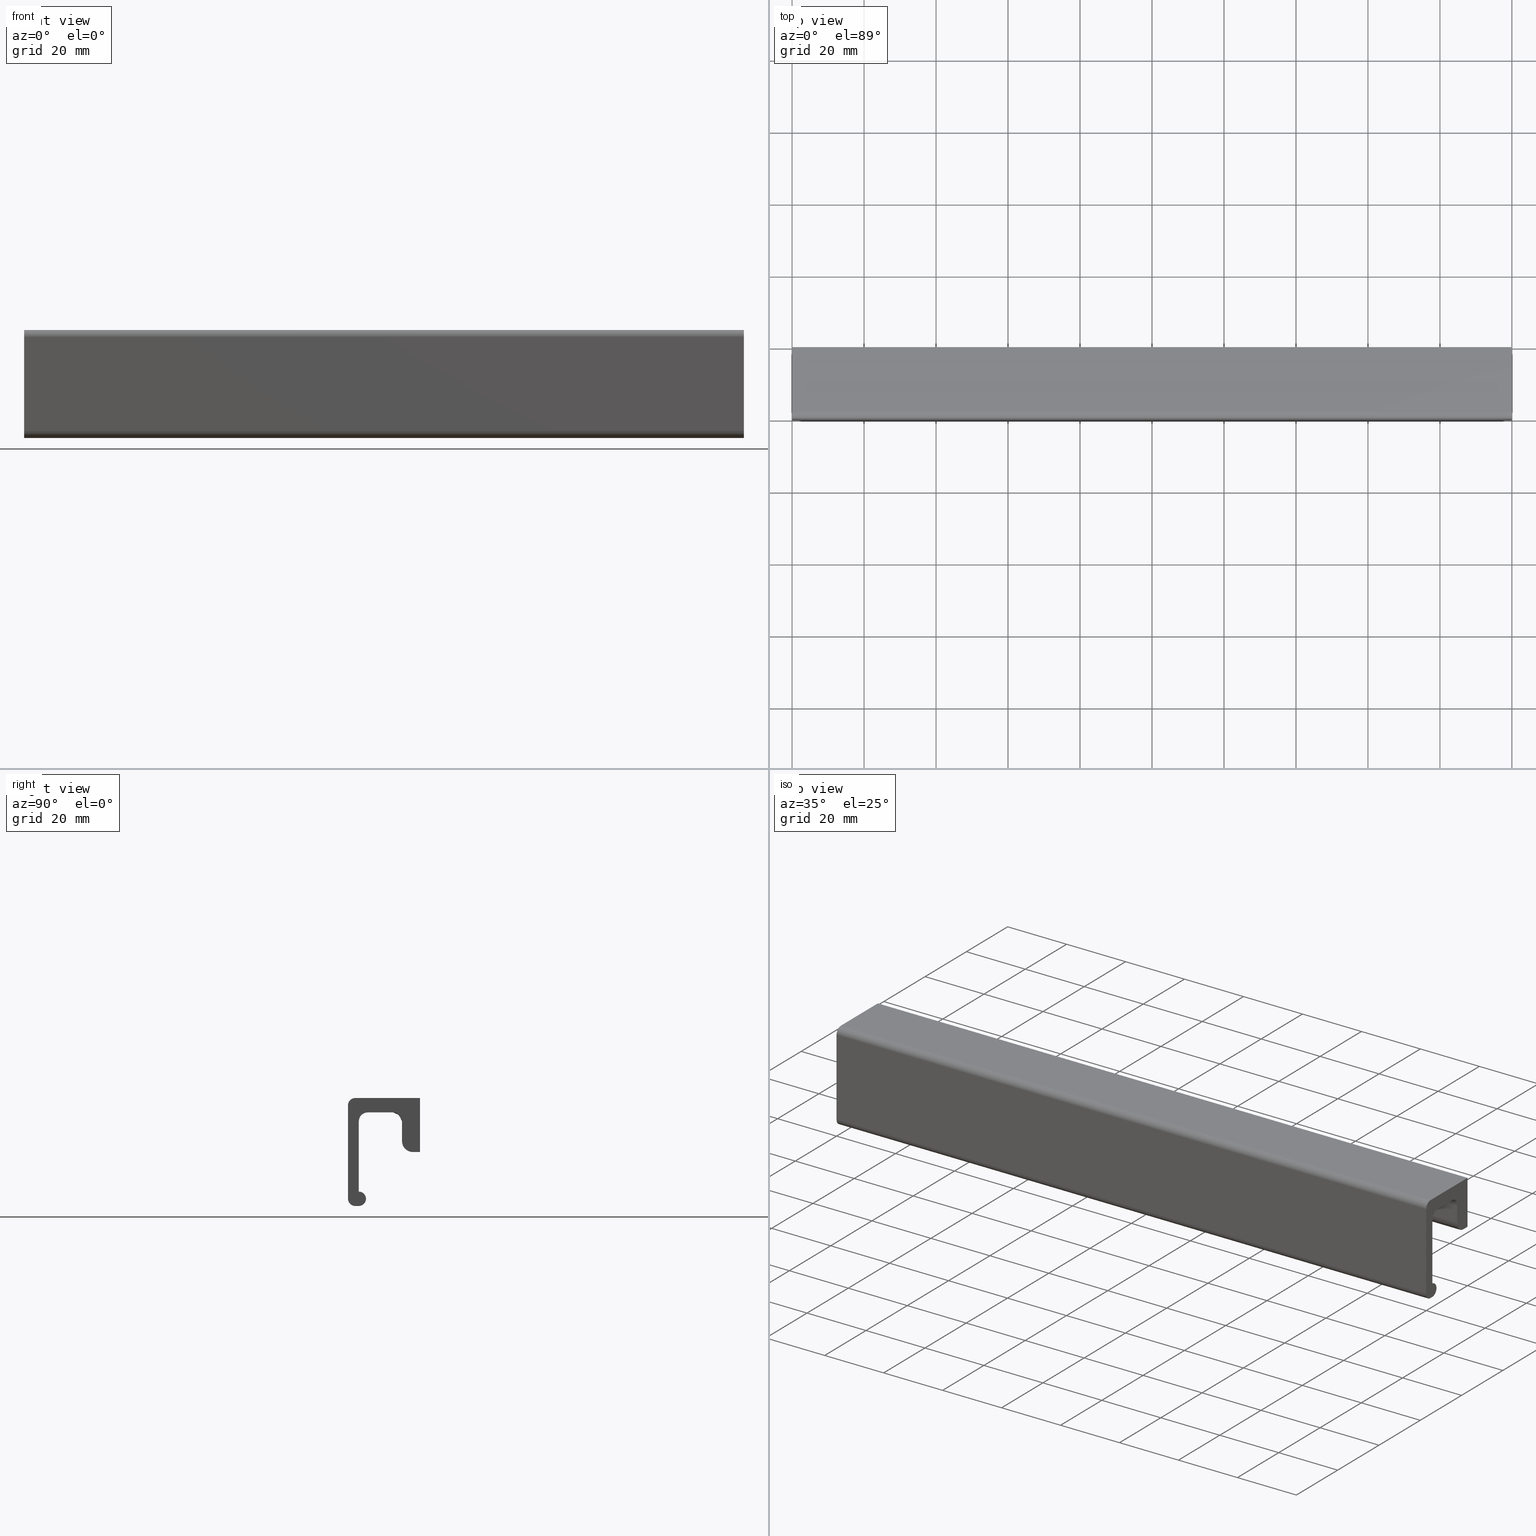
[diagram: canonical four-view strip — front | top / right | iso, engineering-drawing reading convention]
A machine part, canonical four-view strip (front | top / right | iso — engineering-drawing reading convention). The complete STEP part file that produces these views, byte-faithful:
ISO-10303-21;
HEADER;
/****************************************************************
 * Generated by software with PDE/Lib inside                    *
 * PDElib Version 4.4.1-0003, patched  Thursday August 19 11:58 *
 * International Technegroup Inc. (www.iti-oh.com)              *
 ****************************************************************/
FILE_DESCRIPTION((''),'2;1');
FILE_NAME('','2005-10-12T14:43:37',(''),(''),'','CADfix','');
FILE_SCHEMA(('AUTOMOTIVE_DESIGN'));
ENDSEC;
DATA;
#5=APPLICATION_CONTEXT('automotive design');
#6=APPLICATION_PROTOCOL_DEFINITION('Draft International Standard','automotive_design',1998,#5);
#7=PRODUCT_CONTEXT('None',#5,'mechanical');
#8=PRODUCT('pull','','None',(#7));
#9=PRODUCT_RELATED_PRODUCT_CATEGORY('part','description',(#8));
#10=PRODUCT_DEFINITION_FORMATION('None','None',#8);
#11=PRODUCT_DEFINITION_CONTEXT('part definition',#5,'design');
#12=PRODUCT_DEFINITION('None','None',#10,#11);
#18=(NAMED_UNIT(*)PLANE_ANGLE_UNIT()SI_UNIT($,.RADIAN.));
#19=DIMENSIONAL_EXPONENTS(0.0,0.0,0.0,0.0,0.0,0.0,0.0);
#20=PLANE_ANGLE_MEASURE_WITH_UNIT(PLANE_ANGLE_MEASURE(0.017453292500000),#18);
#24=(CONVERSION_BASED_UNIT('DEGREE',#20)NAMED_UNIT(#19)PLANE_ANGLE_UNIT());
#28=(NAMED_UNIT(*)SI_UNIT($,.STERADIAN.)SOLID_ANGLE_UNIT());
#32=(LENGTH_UNIT()NAMED_UNIT(*)SI_UNIT(.MILLI.,.METRE.));
#34=UNCERTAINTY_MEASURE_WITH_UNIT(LENGTH_MEASURE(0.001000000000000),#32,'DISTANCE_ACCURACY_VALUE','');
#36=(GEOMETRIC_REPRESENTATION_CONTEXT(3)GLOBAL_UNCERTAINTY_ASSIGNED_CONTEXT((#34))GLOBAL_UNIT_ASSIGNED_CONTEXT((#24,#28,#32))REPRESENTATION_CONTEXT('None','None'));
#37=AXIS2_PLACEMENT_3D('',#38,#39,#40);
#38=CARTESIAN_POINT('',(0.0,0.0,0.0));
#39=DIRECTION('',(0.0,0.0,1.0));
#40=DIRECTION('',(1.0,0.0,0.0));
#41=ADVANCED_BREP_SHAPE_REPRESENTATION('',(#37,#1245),#36);
#42=PRODUCT_DEFINITION_SHAPE('','',#12);
#43=SHAPE_DEFINITION_REPRESENTATION(#42,#41);
#44=CARTESIAN_POINT('',(177.480665534563800,-5.125000000000124,-9.310320005199573));
#45=CARTESIAN_POINT('',(177.204328145332990,-5.125000000000124,-11.519332076256115));
#46=CARTESIAN_POINT('',(174.978183661254090,-5.125000000000124,-11.499904807660430));
#47=CARTESIAN_POINT('',(172.478278853593680,-5.125000000000124,-11.478088468914493));
#48=CARTESIAN_POINT('',(172.500095192339590,-5.125000000000124,-8.978183661254064));
#49=CARTESIAN_POINT('',(177.480665534563800,0.128125000000003,-9.310320005199573));
#50=CARTESIAN_POINT('',(177.204328145332990,0.128125000000003,-11.519332076256115));
#51=CARTESIAN_POINT('',(174.978183661254090,0.128125000000003,-11.499904807660430));
#52=CARTESIAN_POINT('',(172.478278853593680,0.128125000000003,-11.478088468914493));
#53=CARTESIAN_POINT('',(172.500095192339590,0.128125000000003,-8.978183661254064));
#61=(BOUNDED_SURFACE()B_SPLINE_SURFACE(2,1,((#44,#49),(#45,#50),(#46,#51),(#47,#52),(#48,#53)),.UNSPECIFIED.,.F.,.F.,.U.)B_SPLINE_SURFACE_WITH_KNOTS((3,2,3),(2,2),(0.0,3.810764773832442,7.952900397563357),(0.0,5.253125000000129),.UNSPECIFIED.)GEOMETRIC_REPRESENTATION_ITEM()RATIONAL_B_SPLINE_SURFACE(((0.956886118190660,0.956886118190660),(0.730538238691624,0.730538238691624),(1.0,1.0),(0.707106781186548,0.707106781186548),(1.0,1.0)))REPRESENTATION_ITEM('')SURFACE());
#62=CARTESIAN_POINT('',(177.480665534313910,-5.000000000000121,-9.310320007197948));
#63=VERTEX_POINT('',#62);
#64=CARTESIAN_POINT('',(175.0,-5.000000000000120,-11.500000000000000));
#65=VERTEX_POINT('',#64);
#66=CARTESIAN_POINT('',(177.480665534313860,-5.000000000000121,-9.310320007197948));
#67=CARTESIAN_POINT('',(177.206746496792450,-5.000000000000121,-11.500000000000000));
#68=CARTESIAN_POINT('',(175.0,-5.000000000000120,-11.500000000000000));
#76=(BOUNDED_CURVE()B_SPLINE_CURVE(2,(#66,#67,#68),.UNSPECIFIED.,.F.,.U.)B_SPLINE_CURVE_WITH_KNOTS((3,3),(0.271473929242417,0.500000000000000),.UNSPECIFIED.)CURVE()GEOMETRIC_REPRESENTATION_ITEM()RATIONAL_B_SPLINE_CURVE((0.954005429747424,0.732265054212083,1.0))REPRESENTATION_ITEM(''));
#77=EDGE_CURVE('',#63,#65,#76,.T.);
#78=ORIENTED_EDGE('',*,*,#77,.F.);
#79=CARTESIAN_POINT('',(177.480665534347110,5.801229E-017,-9.310320006932358));
#80=VERTEX_POINT('',#79);
#81=CARTESIAN_POINT('',(177.480665534313910,-5.000000000000121,-9.310320007197948));
#82=CARTESIAN_POINT('',(177.480665534347110,5.801229E-017,-9.310320006932358));
#83=QUASI_UNIFORM_CURVE('',1,(#81,#82),.UNSPECIFIED.,.F.,.U.);
#84=EDGE_CURVE('',#63,#80,#83,.T.);
#85=ORIENTED_EDGE('',*,*,#84,.T.);
#86=CARTESIAN_POINT('',(175.0,0.0,-11.500000000000000));
#87=VERTEX_POINT('',#86);
#88=CARTESIAN_POINT('',(175.0,0.0,-11.500000000000000));
#89=CARTESIAN_POINT('',(177.206746497268740,0.0,-11.500000000000000));
#90=CARTESIAN_POINT('',(177.480665534347140,5.801229E-017,-9.310320006932358));
#98=(BOUNDED_CURVE()B_SPLINE_CURVE(2,(#88,#89,#90),.UNSPECIFIED.,.F.,.U.)B_SPLINE_CURVE_WITH_KNOTS((3,3),(0.500000000000000,0.728526070793695),.UNSPECIFIED.)CURVE()GEOMETRIC_REPRESENTATION_ITEM()RATIONAL_B_SPLINE_CURVE((1.0,0.732265054169775,0.954005429817503))REPRESENTATION_ITEM(''));
#99=EDGE_CURVE('',#87,#80,#98,.T.);
#100=ORIENTED_EDGE('',*,*,#99,.F.);
#101=CARTESIAN_POINT('',(172.500095192353200,8.326673E-017,-8.978183659695775));
#102=VERTEX_POINT('',#101);
#103=CARTESIAN_POINT('',(172.500095192353230,8.326673E-017,-8.978183659695775));
#104=CARTESIAN_POINT('',(172.500000000000060,0.0,-8.989091621389868));
#105=CARTESIAN_POINT('',(172.500000000000000,0.0,-9.0));
#106=CARTESIAN_POINT('',(172.500000000000060,0.0,-11.500000000000000));
#107=CARTESIAN_POINT('',(175.0,0.0,-11.500000000000000));
#115=(BOUNDED_CURVE()B_SPLINE_CURVE(2,(#103,#104,#105,#106,#107),.UNSPECIFIED.,.F.,.U.)B_SPLINE_CURVE_WITH_KNOTS((3,2,3),(0.248460105445419,0.250000000000000,0.500000000000000),.UNSPECIFIED.)CURVE()GEOMETRIC_REPRESENTATION_ITEM()RATIONAL_B_SPLINE_CURVE((0.996414027592205,0.998195901309102,1.0,0.707106781186548,1.0))REPRESENTATION_ITEM(''));
#116=EDGE_CURVE('',#102,#87,#115,.T.);
#117=ORIENTED_EDGE('',*,*,#116,.F.);
#118=CARTESIAN_POINT('',(172.500095192353910,-5.000000000000121,-8.978183659611599));
#119=VERTEX_POINT('',#118);
#120=CARTESIAN_POINT('',(172.500095192353910,-5.000000000000121,-8.978183659611599));
#121=CARTESIAN_POINT('',(172.500095192353200,8.326673E-017,-8.978183659695775));
#122=QUASI_UNIFORM_CURVE('',1,(#120,#121),.UNSPECIFIED.,.F.,.U.);
#123=EDGE_CURVE('',#119,#102,#122,.T.);
#124=ORIENTED_EDGE('',*,*,#123,.F.);
#125=CARTESIAN_POINT('',(175.0,-5.000000000000120,-11.500000000000000));
#126=CARTESIAN_POINT('',(172.500000000000060,-5.000000000000121,-11.500000000000000));
#127=CARTESIAN_POINT('',(172.500000000000000,-5.000000000000120,-9.0));
#128=CARTESIAN_POINT('',(172.499999999999970,-5.000000000000119,-8.989091621305693));
#129=CARTESIAN_POINT('',(172.500095192353910,-5.000000000000121,-8.978183659611599));
#137=(BOUNDED_CURVE()B_SPLINE_CURVE(2,(#125,#126,#127,#128,#129),.UNSPECIFIED.,.F.,.U.)B_SPLINE_CURVE_WITH_KNOTS((3,2,3),(0.500000000000000,0.750000000000000,0.751539894566442),.UNSPECIFIED.)CURVE()GEOMETRIC_REPRESENTATION_ITEM()RATIONAL_B_SPLINE_CURVE((1.0,0.707106781186548,1.0,0.998195901295206,0.996414027564756))REPRESENTATION_ITEM(''));
#138=EDGE_CURVE('',#65,#119,#137,.T.);
#139=ORIENTED_EDGE('',*,*,#138,.F.);
#140=EDGE_LOOP('',(#78,#85,#100,#117,#124,#139));
#141=FACE_OUTER_BOUND('',#140,.T.);
#142=ADVANCED_FACE('',(#141),#61,.F.);
#143=CARTESIAN_POINT('',(172.500095192339590,-5.125000000000124,-8.978183661254064));
#144=CARTESIAN_POINT('',(172.521911531085490,-5.125000000000124,-6.478278853593639));
#145=CARTESIAN_POINT('',(175.021816338745910,-5.125000000000124,-6.500095192339573));
#146=CARTESIAN_POINT('',(177.521721146406380,-5.125000000000124,-6.521911531085508));
#147=CARTESIAN_POINT('',(177.499904807660410,-5.125000000000124,-9.021816338745936));
#148=CARTESIAN_POINT('',(177.498641078150650,-5.125000000000124,-9.166625397395436));
#149=CARTESIAN_POINT('',(177.480665534563800,-5.125000000000124,-9.310320005199573));
#150=CARTESIAN_POINT('',(172.500095192339590,0.128125000000003,-8.978183661254064));
#151=CARTESIAN_POINT('',(172.521911531085490,0.128125000000003,-6.478278853593639));
#152=CARTESIAN_POINT('',(175.021816338745910,0.128125000000003,-6.500095192339573));
#153=CARTESIAN_POINT('',(177.521721146406380,0.128125000000003,-6.521911531085508));
#154=CARTESIAN_POINT('',(177.499904807660410,0.128125000000003,-9.021816338745936));
#155=CARTESIAN_POINT('',(177.498641078150650,0.128125000000003,-9.166625397395436));
#156=CARTESIAN_POINT('',(177.480665534563800,0.128125000000003,-9.310320005199573));
#164=(BOUNDED_SURFACE()B_SPLINE_SURFACE(2,1,((#143,#150),(#144,#151),(#145,#152),(#146,#153),(#147,#154),(#148,#155),(#149,#156)),.UNSPECIFIED.,.F.,.F.,.U.)B_SPLINE_SURFACE_WITH_KNOTS((3,2,2,3),(2,2),(0.0,4.142135623730963,8.284271247461925,8.615642097360404),(0.0,5.253125000000129),.UNSPECIFIED.)GEOMETRIC_REPRESENTATION_ITEM()RATIONAL_B_SPLINE_SURFACE(((1.0,1.0),(0.707106781186548,0.707106781186548),(1.0,1.0),(0.707106781186548,0.707106781186548),(1.0,1.0),(0.976568542494924,0.976568542494924),(0.956886118190660,0.956886118190660)))REPRESENTATION_ITEM('')SURFACE());
#165=CARTESIAN_POINT('',(175.0,-5.000000000000110,-6.500000000000000));
#166=VERTEX_POINT('',#165);
#167=CARTESIAN_POINT('',(175.0,-5.000000000000120,-6.499999999999999));
#168=CARTESIAN_POINT('',(177.500000000000030,-5.000000000000121,-6.499999999999999));
#169=CARTESIAN_POINT('',(177.500000000000000,-5.000000000000120,-9.0));
#170=CARTESIAN_POINT('',(177.499999999999940,-5.000000000000120,-9.155762320855503));
#171=CARTESIAN_POINT('',(177.480665534313860,-5.000000000000121,-9.310320007197948));
#179=(BOUNDED_CURVE()B_SPLINE_CURVE(2,(#167,#168,#169,#170,#171),.UNSPECIFIED.,.F.,.U.)B_SPLINE_CURVE_WITH_KNOTS((3,2,3),(0.0,0.250000000000000,0.271473929242417),.UNSPECIFIED.)CURVE()GEOMETRIC_REPRESENTATION_ITEM()RATIONAL_B_SPLINE_CURVE((1.0,0.707106781186548,1.0,0.974841726974465,0.954005429747424))REPRESENTATION_ITEM(''));
#180=EDGE_CURVE('',#166,#63,#179,.T.);
#181=ORIENTED_EDGE('',*,*,#180,.F.);
#182=CARTESIAN_POINT('',(172.500095192353910,-5.000000000000121,-8.978183659611599));
#183=CARTESIAN_POINT('',(172.521721976769190,-5.000000000000121,-6.499999999999998));
#184=CARTESIAN_POINT('',(175.0,-5.000000000000120,-6.499999999999999));
#192=(BOUNDED_CURVE()B_SPLINE_CURVE(2,(#182,#183,#184),.UNSPECIFIED.,.F.,.U.)B_SPLINE_CURVE_WITH_KNOTS((3,3),(0.751539894566443,1.0),.UNSPECIFIED.)CURVE()GEOMETRIC_REPRESENTATION_ITEM()RATIONAL_B_SPLINE_CURVE((0.996414027564753,0.708910879891342,1.0))REPRESENTATION_ITEM(''));
#193=EDGE_CURVE('',#119,#166,#192,.T.);
#194=ORIENTED_EDGE('',*,*,#193,.F.);
#195=ORIENTED_EDGE('',*,*,#123,.T.);
#196=CARTESIAN_POINT('',(175.0,0.0,-6.499999999999999));
#197=VERTEX_POINT('',#196);
#198=CARTESIAN_POINT('',(175.0,0.0,-6.499999999999999));
#199=CARTESIAN_POINT('',(172.521721976602270,0.0,-6.499999999999998));
#200=CARTESIAN_POINT('',(172.500095192353230,8.326673E-017,-8.978183659695775));
#208=(BOUNDED_CURVE()B_SPLINE_CURVE(2,(#198,#199,#200),.UNSPECIFIED.,.F.,.U.)B_SPLINE_CURVE_WITH_KNOTS((3,3),(0.0,0.248460105445419),.UNSPECIFIED.)CURVE()GEOMETRIC_REPRESENTATION_ITEM()RATIONAL_B_SPLINE_CURVE((1.0,0.708910879877445,0.996414027592205))REPRESENTATION_ITEM(''));
#209=EDGE_CURVE('',#197,#102,#208,.T.);
#210=ORIENTED_EDGE('',*,*,#209,.F.);
#211=CARTESIAN_POINT('',(177.480665534347110,5.801229E-017,-9.310320006932358));
#212=CARTESIAN_POINT('',(177.499999999999970,0.0,-9.155762320586804));
#213=CARTESIAN_POINT('',(177.500000000000000,0.0,-9.0));
#214=CARTESIAN_POINT('',(177.500000000000030,0.0,-6.499999999999999));
#215=CARTESIAN_POINT('',(175.0,0.0,-6.499999999999999));
#223=(BOUNDED_CURVE()B_SPLINE_CURVE(2,(#211,#212,#213,#214,#215),.UNSPECIFIED.,.F.,.U.)B_SPLINE_CURVE_WITH_KNOTS((3,2,3),(0.728526070793695,0.750000000000000,1.0),.UNSPECIFIED.)CURVE()GEOMETRIC_REPRESENTATION_ITEM()RATIONAL_B_SPLINE_CURVE((0.954005429817503,0.974841727016773,1.0,0.707106781186548,1.0))REPRESENTATION_ITEM(''));
#224=EDGE_CURVE('',#80,#197,#223,.T.);
#225=ORIENTED_EDGE('',*,*,#224,.F.);
#226=ORIENTED_EDGE('',*,*,#84,.F.);
#227=EDGE_LOOP('',(#181,#194,#195,#210,#225,#226));
#228=FACE_OUTER_BOUND('',#227,.T.);
#229=ADVANCED_FACE('',(#228),#164,.F.);
#230=CARTESIAN_POINT('',(102.480665534563850,-5.125000000000124,-9.310320005199573));
#231=CARTESIAN_POINT('',(102.204328145333050,-5.125000000000124,-11.519332076256115));
#232=CARTESIAN_POINT('',(99.978183661254064,-5.125000000000124,-11.499904807660430));
#233=CARTESIAN_POINT('',(97.478278853593636,-5.125000000000124,-11.478088468914493));
#234=CARTESIAN_POINT('',(97.500095192339572,-5.125000000000124,-8.978183661254064));
#235=CARTESIAN_POINT('',(102.480665534563850,0.128125000000003,-9.310320005199573));
#236=CARTESIAN_POINT('',(102.204328145333050,0.128125000000003,-11.519332076256115));
#237=CARTESIAN_POINT('',(99.978183661254064,0.128125000000003,-11.499904807660430));
#238=CARTESIAN_POINT('',(97.478278853593636,0.128125000000003,-11.478088468914493));
#239=CARTESIAN_POINT('',(97.500095192339572,0.128125000000003,-8.978183661254064));
#247=(BOUNDED_SURFACE()B_SPLINE_SURFACE(2,1,((#230,#235),(#231,#236),(#232,#237),(#233,#238),(#234,#239)),.UNSPECIFIED.,.F.,.F.,.U.)B_SPLINE_SURFACE_WITH_KNOTS((3,2,3),(2,2),(0.0,3.810764773832463,7.952900397563402),(0.0,5.253125000000129),.UNSPECIFIED.)GEOMETRIC_REPRESENTATION_ITEM()RATIONAL_B_SPLINE_SURFACE(((0.956886118190660,0.956886118190660),(0.730538238691624,0.730538238691624),(1.0,1.0),(0.707106781186548,0.707106781186548),(1.0,1.0)))REPRESENTATION_ITEM('')SURFACE());
#248=CARTESIAN_POINT('',(102.480665534313900,-5.000000000000121,-9.310320007197952));
#249=VERTEX_POINT('',#248);
#250=CARTESIAN_POINT('',(100.0,-5.000000000000120,-11.500000000000000));
#251=VERTEX_POINT('',#250);
#252=CARTESIAN_POINT('',(102.480665534313870,-5.000000000000121,-9.310320007197952));
#253=CARTESIAN_POINT('',(102.206746496792450,-5.000000000000121,-11.500000000000000));
#254=CARTESIAN_POINT('',(100.0,-5.000000000000120,-11.500000000000000));
#262=(BOUNDED_CURVE()B_SPLINE_CURVE(2,(#252,#253,#254),.UNSPECIFIED.,.F.,.U.)B_SPLINE_CURVE_WITH_KNOTS((3,3),(0.271473929242417,0.500000000000000),.UNSPECIFIED.)CURVE()GEOMETRIC_REPRESENTATION_ITEM()RATIONAL_B_SPLINE_CURVE((0.954005429747423,0.732265054212083,1.0))REPRESENTATION_ITEM(''));
#263=EDGE_CURVE('',#249,#251,#262,.T.);
#264=ORIENTED_EDGE('',*,*,#263,.F.);
#265=CARTESIAN_POINT('',(102.480665534347100,5.801229E-017,-9.310320006932358));
#266=VERTEX_POINT('',#265);
#267=CARTESIAN_POINT('',(102.480665534313900,-5.000000000000121,-9.310320007197952));
#268=CARTESIAN_POINT('',(102.480665534347100,5.801229E-017,-9.310320006932358));
#269=QUASI_UNIFORM_CURVE('',1,(#267,#268),.UNSPECIFIED.,.F.,.U.);
#270=EDGE_CURVE('',#249,#266,#269,.T.);
#271=ORIENTED_EDGE('',*,*,#270,.T.);
#272=CARTESIAN_POINT('',(100.0,0.0,-11.500000000000000));
#273=VERTEX_POINT('',#272);
#274=CARTESIAN_POINT('',(100.0,0.0,-11.500000000000000));
#275=CARTESIAN_POINT('',(102.206746497268670,0.0,-11.500000000000000));
#276=CARTESIAN_POINT('',(102.480665534347080,5.801229E-017,-9.310320006932358));
#284=(BOUNDED_CURVE()B_SPLINE_CURVE(2,(#274,#275,#276),.UNSPECIFIED.,.F.,.U.)B_SPLINE_CURVE_WITH_KNOTS((3,3),(0.500000000000000,0.728526070793695),.UNSPECIFIED.)CURVE()GEOMETRIC_REPRESENTATION_ITEM()RATIONAL_B_SPLINE_CURVE((1.0,0.732265054169775,0.954005429817503))REPRESENTATION_ITEM(''));
#285=EDGE_CURVE('',#273,#266,#284,.T.);
#286=ORIENTED_EDGE('',*,*,#285,.F.);
#287=CARTESIAN_POINT('',(97.500095192353172,8.326673E-017,-8.978183659695777));
#288=VERTEX_POINT('',#287);
#289=CARTESIAN_POINT('',(97.500095192353172,8.326673E-017,-8.978183659695777));
#290=CARTESIAN_POINT('',(97.500000000000000,0.0,-8.989091621389868));
#291=CARTESIAN_POINT('',(97.500000000000000,0.0,-9.0));
#292=CARTESIAN_POINT('',(97.500000000000000,0.0,-11.500000000000000));
#293=CARTESIAN_POINT('',(100.0,0.0,-11.500000000000000));
#301=(BOUNDED_CURVE()B_SPLINE_CURVE(2,(#289,#290,#291,#292,#293),.UNSPECIFIED.,.F.,.U.)B_SPLINE_CURVE_WITH_KNOTS((3,2,3),(0.248460105445419,0.250000000000000,0.500000000000000),.UNSPECIFIED.)CURVE()GEOMETRIC_REPRESENTATION_ITEM()RATIONAL_B_SPLINE_CURVE((0.996414027592205,0.998195901309102,1.0,0.707106781186548,1.0))REPRESENTATION_ITEM(''));
#302=EDGE_CURVE('',#288,#273,#301,.T.);
#303=ORIENTED_EDGE('',*,*,#302,.F.);
#304=CARTESIAN_POINT('',(97.500095192353911,-5.000000000000121,-8.978183659611601));
#305=VERTEX_POINT('',#304);
#306=CARTESIAN_POINT('',(97.500095192353911,-5.000000000000121,-8.978183659611601));
#307=CARTESIAN_POINT('',(97.500095192353172,8.326673E-017,-8.978183659695777));
#308=QUASI_UNIFORM_CURVE('',1,(#306,#307),.UNSPECIFIED.,.F.,.U.);
#309=EDGE_CURVE('',#305,#288,#308,.T.);
#310=ORIENTED_EDGE('',*,*,#309,.F.);
#311=CARTESIAN_POINT('',(100.0,-5.000000000000120,-11.500000000000000));
#312=CARTESIAN_POINT('',(97.500000000000000,-5.000000000000121,-11.500000000000000));
#313=CARTESIAN_POINT('',(97.500000000000000,-5.000000000000120,-9.0));
#314=CARTESIAN_POINT('',(97.499999999999986,-5.000000000000119,-8.989091621305693));
#315=CARTESIAN_POINT('',(97.500095192353911,-5.000000000000121,-8.978183659611601));
#323=(BOUNDED_CURVE()B_SPLINE_CURVE(2,(#311,#312,#313,#314,#315),.UNSPECIFIED.,.F.,.U.)B_SPLINE_CURVE_WITH_KNOTS((3,2,3),(0.500000000000000,0.750000000000000,0.751539894566442),.UNSPECIFIED.)CURVE()GEOMETRIC_REPRESENTATION_ITEM()RATIONAL_B_SPLINE_CURVE((1.0,0.707106781186548,1.0,0.998195901295206,0.996414027564756))REPRESENTATION_ITEM(''));
#324=EDGE_CURVE('',#251,#305,#323,.T.);
#325=ORIENTED_EDGE('',*,*,#324,.F.);
#326=EDGE_LOOP('',(#264,#271,#286,#303,#310,#325));
#327=FACE_OUTER_BOUND('',#326,.T.);
#328=ADVANCED_FACE('',(#327),#247,.F.);
#329=CARTESIAN_POINT('',(97.500095192339572,-5.125000000000124,-8.978183661254064));
#330=CARTESIAN_POINT('',(97.521911531085507,-5.125000000000124,-6.478278853593639));
#331=CARTESIAN_POINT('',(100.021816338745890,-5.125000000000124,-6.500095192339573));
#332=CARTESIAN_POINT('',(102.521721146406380,-5.125000000000124,-6.521911531085508));
#333=CARTESIAN_POINT('',(102.499904807660400,-5.125000000000124,-9.021816338745936));
#334=CARTESIAN_POINT('',(102.498641078150740,-5.125000000000124,-9.166625397395436));
#335=CARTESIAN_POINT('',(102.480665534563850,-5.125000000000124,-9.310320005199573));
#336=CARTESIAN_POINT('',(97.500095192339572,0.128125000000003,-8.978183661254064));
#337=CARTESIAN_POINT('',(97.521911531085507,0.128125000000003,-6.478278853593639));
#338=CARTESIAN_POINT('',(100.021816338745890,0.128125000000003,-6.500095192339573));
#339=CARTESIAN_POINT('',(102.521721146406380,0.128125000000003,-6.521911531085508));
#340=CARTESIAN_POINT('',(102.499904807660400,0.128125000000003,-9.021816338745936));
#341=CARTESIAN_POINT('',(102.498641078150740,0.128125000000003,-9.166625397395436));
#342=CARTESIAN_POINT('',(102.480665534563850,0.128125000000003,-9.310320005199573));
#350=(BOUNDED_SURFACE()B_SPLINE_SURFACE(2,1,((#329,#336),(#330,#337),(#331,#338),(#332,#339),(#333,#340),(#334,#341),(#335,#342)),.UNSPECIFIED.,.F.,.F.,.U.)B_SPLINE_SURFACE_WITH_KNOTS((3,2,2,3),(2,2),(0.0,4.142135623730940,8.284271247461879,8.615642097360354),(0.0,5.253125000000129),.UNSPECIFIED.)GEOMETRIC_REPRESENTATION_ITEM()RATIONAL_B_SPLINE_SURFACE(((1.0,1.0),(0.707106781186548,0.707106781186548),(1.0,1.0),(0.707106781186548,0.707106781186548),(1.0,1.0),(0.976568542494924,0.976568542494924),(0.956886118190660,0.956886118190660)))REPRESENTATION_ITEM('')SURFACE());
#351=CARTESIAN_POINT('',(100.0,-5.000000000000110,-6.500000000000000));
#352=VERTEX_POINT('',#351);
#353=CARTESIAN_POINT('',(100.0,-5.000000000000120,-6.499999999999999));
#354=CARTESIAN_POINT('',(102.500000000000010,-5.000000000000121,-6.499999999999999));
#355=CARTESIAN_POINT('',(102.500000000000000,-5.000000000000120,-9.0));
#356=CARTESIAN_POINT('',(102.500000000000030,-5.000000000000120,-9.155762320855507));
#357=CARTESIAN_POINT('',(102.480665534313870,-5.000000000000121,-9.310320007197952));
#365=(BOUNDED_CURVE()B_SPLINE_CURVE(2,(#353,#354,#355,#356,#357),.UNSPECIFIED.,.F.,.U.)B_SPLINE_CURVE_WITH_KNOTS((3,2,3),(0.0,0.250000000000000,0.271473929242417),.UNSPECIFIED.)CURVE()GEOMETRIC_REPRESENTATION_ITEM()RATIONAL_B_SPLINE_CURVE((1.0,0.707106781186548,1.0,0.974841726974464,0.954005429747423))REPRESENTATION_ITEM(''));
#366=EDGE_CURVE('',#352,#249,#365,.T.);
#367=ORIENTED_EDGE('',*,*,#366,.F.);
#368=CARTESIAN_POINT('',(97.500095192353911,-5.000000000000121,-8.978183659611601));
#369=CARTESIAN_POINT('',(97.521721976769172,-5.000000000000120,-6.499999999999999));
#370=CARTESIAN_POINT('',(100.0,-5.000000000000120,-6.499999999999999));
#378=(BOUNDED_CURVE()B_SPLINE_CURVE(2,(#368,#369,#370),.UNSPECIFIED.,.F.,.U.)B_SPLINE_CURVE_WITH_KNOTS((3,3),(0.751539894566443,1.0),.UNSPECIFIED.)CURVE()GEOMETRIC_REPRESENTATION_ITEM()RATIONAL_B_SPLINE_CURVE((0.996414027564753,0.708910879891342,1.0))REPRESENTATION_ITEM(''));
#379=EDGE_CURVE('',#305,#352,#378,.T.);
#380=ORIENTED_EDGE('',*,*,#379,.F.);
#381=ORIENTED_EDGE('',*,*,#309,.T.);
#382=CARTESIAN_POINT('',(100.0,0.0,-6.499999999999999));
#383=VERTEX_POINT('',#382);
#384=CARTESIAN_POINT('',(100.0,0.0,-6.499999999999999));
#385=CARTESIAN_POINT('',(97.521721976602279,0.0,-6.500000000000000));
#386=CARTESIAN_POINT('',(97.500095192353172,8.326673E-017,-8.978183659695777));
#394=(BOUNDED_CURVE()B_SPLINE_CURVE(2,(#384,#385,#386),.UNSPECIFIED.,.F.,.U.)B_SPLINE_CURVE_WITH_KNOTS((3,3),(0.0,0.248460105445419),.UNSPECIFIED.)CURVE()GEOMETRIC_REPRESENTATION_ITEM()RATIONAL_B_SPLINE_CURVE((1.0,0.708910879877445,0.996414027592205))REPRESENTATION_ITEM(''));
#395=EDGE_CURVE('',#383,#288,#394,.T.);
#396=ORIENTED_EDGE('',*,*,#395,.F.);
#397=CARTESIAN_POINT('',(102.480665534347080,5.801229E-017,-9.310320006932358));
#398=CARTESIAN_POINT('',(102.500000000000010,0.0,-9.155762320586804));
#399=CARTESIAN_POINT('',(102.500000000000000,0.0,-9.0));
#400=CARTESIAN_POINT('',(102.500000000000010,0.0,-6.499999999999999));
#401=CARTESIAN_POINT('',(100.0,0.0,-6.499999999999999));
#409=(BOUNDED_CURVE()B_SPLINE_CURVE(2,(#397,#398,#399,#400,#401),.UNSPECIFIED.,.F.,.U.)B_SPLINE_CURVE_WITH_KNOTS((3,2,3),(0.728526070793695,0.750000000000000,1.0),.UNSPECIFIED.)CURVE()GEOMETRIC_REPRESENTATION_ITEM()RATIONAL_B_SPLINE_CURVE((0.954005429817503,0.974841727016773,1.0,0.707106781186548,1.0))REPRESENTATION_ITEM(''));
#410=EDGE_CURVE('',#266,#383,#409,.T.);
#411=ORIENTED_EDGE('',*,*,#410,.F.);
#412=ORIENTED_EDGE('',*,*,#270,.F.);
#413=EDGE_LOOP('',(#367,#380,#381,#396,#411,#412));
#414=FACE_OUTER_BOUND('',#413,.T.);
#415=ADVANCED_FACE('',(#414),#350,.F.);
#416=CARTESIAN_POINT('',(27.480665534563840,-5.125000000000124,-9.310320005199573));
#417=CARTESIAN_POINT('',(27.204328145333058,-5.125000000000124,-11.519332076256115));
#418=CARTESIAN_POINT('',(24.978183661254061,-5.125000000000124,-11.499904807660430));
#419=CARTESIAN_POINT('',(22.478278853593643,-5.125000000000124,-11.478088468914493));
#420=CARTESIAN_POINT('',(22.500095192339568,-5.125000000000124,-8.978183661254064));
#421=CARTESIAN_POINT('',(27.480665534563840,0.128125000000003,-9.310320005199573));
#422=CARTESIAN_POINT('',(27.204328145333058,0.128125000000003,-11.519332076256115));
#423=CARTESIAN_POINT('',(24.978183661254061,0.128125000000003,-11.499904807660430));
#424=CARTESIAN_POINT('',(22.478278853593643,0.128125000000003,-11.478088468914493));
#425=CARTESIAN_POINT('',(22.500095192339568,0.128125000000003,-8.978183661254064));
#433=(BOUNDED_SURFACE()B_SPLINE_SURFACE(2,1,((#416,#421),(#417,#422),(#418,#423),(#419,#424),(#420,#425)),.UNSPECIFIED.,.F.,.F.,.U.)B_SPLINE_SURFACE_WITH_KNOTS((3,2,3),(2,2),(0.0,3.810764773832474,7.952900397563425),(0.0,5.253125000000129),.UNSPECIFIED.)GEOMETRIC_REPRESENTATION_ITEM()RATIONAL_B_SPLINE_SURFACE(((0.956886118190660,0.956886118190660),(0.730538238691624,0.730538238691624),(1.0,1.0),(0.707106781186548,0.707106781186548),(1.0,1.0)))REPRESENTATION_ITEM('')SURFACE());
#434=CARTESIAN_POINT('',(27.480665534313861,-5.000000000000121,-9.310320007197950));
#435=VERTEX_POINT('',#434);
#436=CARTESIAN_POINT('',(25.0,-5.000000000000120,-11.500000000000000));
#437=VERTEX_POINT('',#436);
#438=CARTESIAN_POINT('',(27.480665534313861,-5.000000000000121,-9.310320007197950));
#439=CARTESIAN_POINT('',(27.206746496792444,-5.000000000000120,-11.500000000000000));
#440=CARTESIAN_POINT('',(25.0,-5.000000000000120,-11.500000000000000));
#448=(BOUNDED_CURVE()B_SPLINE_CURVE(2,(#438,#439,#440),.UNSPECIFIED.,.F.,.U.)B_SPLINE_CURVE_WITH_KNOTS((3,3),(0.271473929242417,0.500000000000000),.UNSPECIFIED.)CURVE()GEOMETRIC_REPRESENTATION_ITEM()RATIONAL_B_SPLINE_CURVE((0.954005429747424,0.732265054212083,1.0))REPRESENTATION_ITEM(''));
#449=EDGE_CURVE('',#435,#437,#448,.T.);
#450=ORIENTED_EDGE('',*,*,#449,.F.);
#451=CARTESIAN_POINT('',(27.480665534347079,5.801229E-017,-9.310320006932356));
#452=VERTEX_POINT('',#451);
#453=CARTESIAN_POINT('',(27.480665534313861,-5.000000000000121,-9.310320007197950));
#454=CARTESIAN_POINT('',(27.480665534347079,5.801229E-017,-9.310320006932356));
#455=QUASI_UNIFORM_CURVE('',1,(#453,#454),.UNSPECIFIED.,.F.,.U.);
#456=EDGE_CURVE('',#435,#452,#455,.T.);
#457=ORIENTED_EDGE('',*,*,#456,.T.);
#458=CARTESIAN_POINT('',(25.0,0.0,-11.500000000000000));
#459=VERTEX_POINT('',#458);
#460=CARTESIAN_POINT('',(25.0,0.0,-11.500000000000000));
#461=CARTESIAN_POINT('',(27.206746497268643,0.0,-11.500000000000000));
#462=CARTESIAN_POINT('',(27.480665534347086,5.801229E-017,-9.310320006932356));
#470=(BOUNDED_CURVE()B_SPLINE_CURVE(2,(#460,#461,#462),.UNSPECIFIED.,.F.,.U.)B_SPLINE_CURVE_WITH_KNOTS((3,3),(0.500000000000000,0.728526070793695),.UNSPECIFIED.)CURVE()GEOMETRIC_REPRESENTATION_ITEM()RATIONAL_B_SPLINE_CURVE((1.0,0.732265054169775,0.954005429817503))REPRESENTATION_ITEM(''));
#471=EDGE_CURVE('',#459,#452,#470,.T.);
#472=ORIENTED_EDGE('',*,*,#471,.F.);
#473=CARTESIAN_POINT('',(22.500095192353172,8.326673E-017,-8.978183659695775));
#474=VERTEX_POINT('',#473);
#475=CARTESIAN_POINT('',(22.500095192353168,8.326673E-017,-8.978183659695775));
#476=CARTESIAN_POINT('',(22.500000000000000,0.0,-8.989091621389868));
#477=CARTESIAN_POINT('',(22.500000000000000,0.0,-9.0));
#478=CARTESIAN_POINT('',(22.500000000000000,0.0,-11.500000000000000));
#479=CARTESIAN_POINT('',(25.0,0.0,-11.500000000000000));
#487=(BOUNDED_CURVE()B_SPLINE_CURVE(2,(#475,#476,#477,#478,#479),.UNSPECIFIED.,.F.,.U.)B_SPLINE_CURVE_WITH_KNOTS((3,2,3),(0.248460105445419,0.250000000000000,0.500000000000000),.UNSPECIFIED.)CURVE()GEOMETRIC_REPRESENTATION_ITEM()RATIONAL_B_SPLINE_CURVE((0.996414027592205,0.998195901309102,1.0,0.707106781186548,1.0))REPRESENTATION_ITEM(''));
#488=EDGE_CURVE('',#474,#459,#487,.T.);
#489=ORIENTED_EDGE('',*,*,#488,.F.);
#490=CARTESIAN_POINT('',(22.500095192353911,-5.000000000000121,-8.978183659611601));
#491=VERTEX_POINT('',#490);
#492=CARTESIAN_POINT('',(22.500095192353911,-5.000000000000121,-8.978183659611601));
#493=CARTESIAN_POINT('',(22.500095192353172,8.326673E-017,-8.978183659695775));
#494=QUASI_UNIFORM_CURVE('',1,(#492,#493),.UNSPECIFIED.,.F.,.U.);
#495=EDGE_CURVE('',#491,#474,#494,.T.);
#496=ORIENTED_EDGE('',*,*,#495,.F.);
#497=CARTESIAN_POINT('',(25.0,-5.000000000000120,-11.500000000000000));
#498=CARTESIAN_POINT('',(22.500000000000000,-5.000000000000121,-11.500000000000000));
#499=CARTESIAN_POINT('',(22.500000000000000,-5.000000000000120,-9.0));
#500=CARTESIAN_POINT('',(22.500000000000007,-5.000000000000119,-8.989091621305693));
#501=CARTESIAN_POINT('',(22.500095192353911,-5.000000000000121,-8.978183659611601));
#509=(BOUNDED_CURVE()B_SPLINE_CURVE(2,(#497,#498,#499,#500,#501),.UNSPECIFIED.,.F.,.U.)B_SPLINE_CURVE_WITH_KNOTS((3,2,3),(0.500000000000000,0.750000000000000,0.751539894566442),.UNSPECIFIED.)CURVE()GEOMETRIC_REPRESENTATION_ITEM()RATIONAL_B_SPLINE_CURVE((1.0,0.707106781186548,1.0,0.998195901295206,0.996414027564756))REPRESENTATION_ITEM(''));
#510=EDGE_CURVE('',#437,#491,#509,.T.);
#511=ORIENTED_EDGE('',*,*,#510,.F.);
#512=EDGE_LOOP('',(#450,#457,#472,#489,#496,#511));
#513=FACE_OUTER_BOUND('',#512,.T.);
#514=ADVANCED_FACE('',(#513),#433,.F.);
#515=CARTESIAN_POINT('',(22.500095192339568,-5.125000000000124,-8.978183661254064));
#516=CARTESIAN_POINT('',(22.521911531085504,-5.125000000000124,-6.478278853593639));
#517=CARTESIAN_POINT('',(25.021816338745939,-5.125000000000124,-6.500095192339573));
#518=CARTESIAN_POINT('',(27.521721146406374,-5.125000000000124,-6.521911531085508));
#519=CARTESIAN_POINT('',(27.499904807660432,-5.125000000000124,-9.021816338745936));
#520=CARTESIAN_POINT('',(27.498641078150690,-5.125000000000124,-9.166625397395436));
#521=CARTESIAN_POINT('',(27.480665534563840,-5.125000000000124,-9.310320005199573));
#522=CARTESIAN_POINT('',(22.500095192339568,0.128125000000003,-8.978183661254064));
#523=CARTESIAN_POINT('',(22.521911531085504,0.128125000000003,-6.478278853593639));
#524=CARTESIAN_POINT('',(25.021816338745939,0.128125000000003,-6.500095192339573));
#525=CARTESIAN_POINT('',(27.521721146406374,0.128125000000003,-6.521911531085508));
#526=CARTESIAN_POINT('',(27.499904807660432,0.128125000000003,-9.021816338745936));
#527=CARTESIAN_POINT('',(27.498641078150690,0.128125000000003,-9.166625397395436));
#528=CARTESIAN_POINT('',(27.480665534563840,0.128125000000003,-9.310320005199573));
#536=(BOUNDED_SURFACE()B_SPLINE_SURFACE(2,1,((#515,#522),(#516,#523),(#517,#524),(#518,#525),(#519,#526),(#520,#527),(#521,#528)),.UNSPECIFIED.,.F.,.F.,.U.)B_SPLINE_SURFACE_WITH_KNOTS((3,2,2,3),(2,2),(0.0,4.142135623730951,8.284271247461902,8.615642097360379),(0.0,5.253125000000129),.UNSPECIFIED.)GEOMETRIC_REPRESENTATION_ITEM()RATIONAL_B_SPLINE_SURFACE(((1.0,1.0),(0.707106781186548,0.707106781186548),(1.0,1.0),(0.707106781186548,0.707106781186548),(1.0,1.0),(0.976568542494924,0.976568542494924),(0.956886118190660,0.956886118190660)))REPRESENTATION_ITEM('')SURFACE());
#537=CARTESIAN_POINT('',(25.0,-5.000000000000110,-6.500000000000000));
#538=VERTEX_POINT('',#537);
#539=CARTESIAN_POINT('',(25.0,-5.000000000000120,-6.499999999999999));
#540=CARTESIAN_POINT('',(27.500000000000004,-5.000000000000121,-6.499999999999999));
#541=CARTESIAN_POINT('',(27.500000000000000,-5.000000000000120,-9.0));
#542=CARTESIAN_POINT('',(27.499999999999993,-5.000000000000120,-9.155762320855503));
#543=CARTESIAN_POINT('',(27.480665534313861,-5.000000000000121,-9.310320007197950));
#551=(BOUNDED_CURVE()B_SPLINE_CURVE(2,(#539,#540,#541,#542,#543),.UNSPECIFIED.,.F.,.U.)B_SPLINE_CURVE_WITH_KNOTS((3,2,3),(0.0,0.250000000000000,0.271473929242417),.UNSPECIFIED.)CURVE()GEOMETRIC_REPRESENTATION_ITEM()RATIONAL_B_SPLINE_CURVE((1.0,0.707106781186548,1.0,0.974841726974465,0.954005429747424))REPRESENTATION_ITEM(''));
#552=EDGE_CURVE('',#538,#435,#551,.T.);
#553=ORIENTED_EDGE('',*,*,#552,.F.);
#554=CARTESIAN_POINT('',(22.500095192353914,-5.000000000000121,-8.978183659611601));
#555=CARTESIAN_POINT('',(22.521721976769189,-5.000000000000120,-6.499999999999999));
#556=CARTESIAN_POINT('',(25.0,-5.000000000000120,-6.499999999999999));
#564=(BOUNDED_CURVE()B_SPLINE_CURVE(2,(#554,#555,#556),.UNSPECIFIED.,.F.,.U.)B_SPLINE_CURVE_WITH_KNOTS((3,3),(0.751539894566443,1.0),.UNSPECIFIED.)CURVE()GEOMETRIC_REPRESENTATION_ITEM()RATIONAL_B_SPLINE_CURVE((0.996414027564753,0.708910879891342,1.0))REPRESENTATION_ITEM(''));
#565=EDGE_CURVE('',#491,#538,#564,.T.);
#566=ORIENTED_EDGE('',*,*,#565,.F.);
#567=ORIENTED_EDGE('',*,*,#495,.T.);
#568=CARTESIAN_POINT('',(25.0,0.0,-6.499999999999999));
#569=VERTEX_POINT('',#568);
#570=CARTESIAN_POINT('',(25.0,0.0,-6.499999999999999));
#571=CARTESIAN_POINT('',(22.521721976602297,0.0,-6.499999999999999));
#572=CARTESIAN_POINT('',(22.500095192353172,8.326673E-017,-8.978183659695775));
#580=(BOUNDED_CURVE()B_SPLINE_CURVE(2,(#570,#571,#572),.UNSPECIFIED.,.F.,.U.)B_SPLINE_CURVE_WITH_KNOTS((3,3),(0.0,0.248460105445419),.UNSPECIFIED.)CURVE()GEOMETRIC_REPRESENTATION_ITEM()RATIONAL_B_SPLINE_CURVE((1.0,0.708910879877445,0.996414027592205))REPRESENTATION_ITEM(''));
#581=EDGE_CURVE('',#569,#474,#580,.T.);
#582=ORIENTED_EDGE('',*,*,#581,.F.);
#583=CARTESIAN_POINT('',(27.480665534347086,5.801229E-017,-9.310320006932356));
#584=CARTESIAN_POINT('',(27.499999999999996,0.0,-9.155762320586804));
#585=CARTESIAN_POINT('',(27.500000000000000,0.0,-9.0));
#586=CARTESIAN_POINT('',(27.500000000000004,0.0,-6.499999999999999));
#587=CARTESIAN_POINT('',(25.0,0.0,-6.499999999999999));
#595=(BOUNDED_CURVE()B_SPLINE_CURVE(2,(#583,#584,#585,#586,#587),.UNSPECIFIED.,.F.,.U.)B_SPLINE_CURVE_WITH_KNOTS((3,2,3),(0.728526070793695,0.750000000000000,1.0),.UNSPECIFIED.)CURVE()GEOMETRIC_REPRESENTATION_ITEM()RATIONAL_B_SPLINE_CURVE((0.954005429817503,0.974841727016773,1.0,0.707106781186548,1.0))REPRESENTATION_ITEM(''));
#596=EDGE_CURVE('',#452,#569,#595,.T.);
#597=ORIENTED_EDGE('',*,*,#596,.F.);
#598=ORIENTED_EDGE('',*,*,#456,.F.);
#599=EDGE_LOOP('',(#553,#566,#567,#582,#597,#598));
#600=FACE_OUTER_BOUND('',#599,.T.);
#601=ADVANCED_FACE('',(#600),#536,.F.);
#602=CARTESIAN_POINT('',(-9.989999612361194,-5.000000000000110,-6.225275010660067));
#603=CARTESIAN_POINT('',(-9.989999612361194,-5.000000000000110,-12.274725136861431));
#604=CARTESIAN_POINT('',(209.990004976779200,-5.000000000000110,-6.225275010660067));
#605=CARTESIAN_POINT('',(209.990004976779200,-5.000000000000110,-12.274725136861431));
#606=B_SPLINE_SURFACE_WITH_KNOTS('',1,1,((#602,#604),(#603,#605)),.UNSPECIFIED.,.F.,.F.,.U.,(2,2),(2,2),(0.0,6.049450126201364),(0.0,219.980004589140410),.UNSPECIFIED.);
#607=CARTESIAN_POINT('',(200.0,-5.000000000000110,-6.500000000000000));
#608=VERTEX_POINT('',#607);
#609=CARTESIAN_POINT('',(200.0,-5.000000000000110,-6.500000000000000));
#610=CARTESIAN_POINT('',(175.0,-5.000000000000110,-6.500000000000000));
#611=QUASI_UNIFORM_CURVE('',1,(#609,#610),.UNSPECIFIED.,.F.,.U.);
#612=EDGE_CURVE('',#608,#166,#611,.T.);
#613=ORIENTED_EDGE('',*,*,#612,.T.);
#614=ORIENTED_EDGE('',*,*,#180,.T.);
#615=ORIENTED_EDGE('',*,*,#77,.T.);
#616=ORIENTED_EDGE('',*,*,#138,.T.);
#617=ORIENTED_EDGE('',*,*,#193,.T.);
#618=CARTESIAN_POINT('',(175.0,-5.000000000000110,-6.500000000000000));
#619=CARTESIAN_POINT('',(100.0,-5.000000000000110,-6.500000000000000));
#620=QUASI_UNIFORM_CURVE('',1,(#618,#619),.UNSPECIFIED.,.F.,.U.);
#621=EDGE_CURVE('',#166,#352,#620,.T.);
#622=ORIENTED_EDGE('',*,*,#621,.T.);
#623=ORIENTED_EDGE('',*,*,#366,.T.);
#624=ORIENTED_EDGE('',*,*,#263,.T.);
#625=ORIENTED_EDGE('',*,*,#324,.T.);
#626=ORIENTED_EDGE('',*,*,#379,.T.);
#627=CARTESIAN_POINT('',(100.0,-5.000000000000110,-6.500000000000000));
#628=CARTESIAN_POINT('',(25.0,-5.000000000000110,-6.500000000000000));
#629=QUASI_UNIFORM_CURVE('',1,(#627,#628),.UNSPECIFIED.,.F.,.U.);
#630=EDGE_CURVE('',#352,#538,#629,.T.);
#631=ORIENTED_EDGE('',*,*,#630,.T.);
#632=ORIENTED_EDGE('',*,*,#552,.T.);
#633=ORIENTED_EDGE('',*,*,#449,.T.);
#634=ORIENTED_EDGE('',*,*,#510,.T.);
#635=ORIENTED_EDGE('',*,*,#565,.T.);
#636=CARTESIAN_POINT('',(0.0,-5.000000000000110,-6.500000000000000));
#637=VERTEX_POINT('',#636);
#638=CARTESIAN_POINT('',(25.0,-5.000000000000110,-6.500000000000000));
#639=CARTESIAN_POINT('',(0.0,-5.000000000000110,-6.500000000000000));
#640=QUASI_UNIFORM_CURVE('',1,(#638,#639),.UNSPECIFIED.,.F.,.U.);
#641=EDGE_CURVE('',#538,#637,#640,.T.);
#642=ORIENTED_EDGE('',*,*,#641,.T.);
#643=CARTESIAN_POINT('',(0.0,-5.0,-12.0));
#644=VERTEX_POINT('',#643);
#645=CARTESIAN_POINT('',(0.0,-5.0,-12.0));
#646=CARTESIAN_POINT('',(0.0,-5.000000000000110,-6.500000000000000));
#647=QUASI_UNIFORM_CURVE('',1,(#645,#646),.UNSPECIFIED.,.F.,.U.);
#648=EDGE_CURVE('',#644,#637,#647,.T.);
#649=ORIENTED_EDGE('',*,*,#648,.F.);
#650=CARTESIAN_POINT('',(200.0,-5.0,-12.0));
#651=VERTEX_POINT('',#650);
#652=CARTESIAN_POINT('',(200.0,-5.0,-12.0));
#653=CARTESIAN_POINT('',(0.0,-5.0,-12.0));
#654=QUASI_UNIFORM_CURVE('',1,(#652,#653),.UNSPECIFIED.,.F.,.U.);
#655=EDGE_CURVE('',#651,#644,#654,.T.);
#656=ORIENTED_EDGE('',*,*,#655,.F.);
#657=CARTESIAN_POINT('',(200.0,-5.0,-12.0));
#658=CARTESIAN_POINT('',(200.0,-5.000000000000110,-6.500000000000000));
#659=QUASI_UNIFORM_CURVE('',1,(#657,#658),.UNSPECIFIED.,.F.,.U.);
#660=EDGE_CURVE('',#651,#608,#659,.T.);
#661=ORIENTED_EDGE('',*,*,#660,.T.);
#662=EDGE_LOOP('',(#613,#614,#615,#616,#617,#622,#623,#624,#625,#626,#631,#632,#633,#634,#635,#642,#649,#656,#661));
#663=FACE_OUTER_BOUND('',#662,.T.);
#664=ADVANCED_FACE('',(#663),#606,.T.);
#665=CARTESIAN_POINT('',(-7.105427E-015,-20.998999961236120,1.498499941854179));
#666=CARTESIAN_POINT('',(-7.105427E-015,0.999000497677920,1.498499941854179));
#667=CARTESIAN_POINT('',(-7.105427E-015,-20.998999961236120,-31.498500746516889));
#668=CARTESIAN_POINT('',(-7.105427E-015,0.999000497677920,-31.498500746516889));
#669=B_SPLINE_SURFACE_WITH_KNOTS('',1,1,((#665,#667),(#666,#668)),.UNSPECIFIED.,.F.,.F.,.U.,(2,2),(2,2),(0.0,21.998000458914039),(0.0,32.997000688371067),.UNSPECIFIED.);
#670=CARTESIAN_POINT('',(0.0,0.0,0.0));
#671=VERTEX_POINT('',#670);
#672=CARTESIAN_POINT('',(0.0,0.0,-15.0));
#673=VERTEX_POINT('',#672);
#674=CARTESIAN_POINT('',(0.0,0.0,0.0));
#675=CARTESIAN_POINT('',(0.0,0.0,-15.0));
#676=QUASI_UNIFORM_CURVE('',1,(#674,#675),.UNSPECIFIED.,.F.,.U.);
#677=EDGE_CURVE('',#671,#673,#676,.T.);
#678=ORIENTED_EDGE('',*,*,#677,.T.);
#679=CARTESIAN_POINT('',(0.0,-2.0,-15.0));
#680=VERTEX_POINT('',#679);
#681=CARTESIAN_POINT('',(0.0,0.0,-15.0));
#682=CARTESIAN_POINT('',(0.0,-2.0,-15.0));
#683=QUASI_UNIFORM_CURVE('',1,(#681,#682),.UNSPECIFIED.,.F.,.U.);
#684=EDGE_CURVE('',#673,#680,#683,.T.);
#685=ORIENTED_EDGE('',*,*,#684,.T.);
#686=CARTESIAN_POINT('',(0.0,-5.0,-12.0));
#687=CARTESIAN_POINT('',(0.0,-5.000000000000001,-14.999999999999995));
#688=CARTESIAN_POINT('',(0.0,-2.0,-15.0));
#696=(BOUNDED_CURVE()B_SPLINE_CURVE(2,(#686,#687,#688),.UNSPECIFIED.,.F.,.U.)CURVE()GEOMETRIC_REPRESENTATION_ITEM()QUASI_UNIFORM_CURVE()RATIONAL_B_SPLINE_CURVE((1.0,0.707106781186548,1.0))REPRESENTATION_ITEM(''));
#697=EDGE_CURVE('',#644,#680,#696,.T.);
#698=ORIENTED_EDGE('',*,*,#697,.F.);
#699=ORIENTED_EDGE('',*,*,#648,.T.);
#700=CARTESIAN_POINT('',(0.0,-7.500000000000110,-4.0));
#701=VERTEX_POINT('',#700);
#702=CARTESIAN_POINT('',(0.0,-5.000000000000110,-6.500000000000000));
#703=CARTESIAN_POINT('',(0.0,-5.000000000000110,-4.000000000000000));
#704=CARTESIAN_POINT('',(0.0,-7.500000000000110,-4.0));
#712=(BOUNDED_CURVE()B_SPLINE_CURVE(2,(#702,#703,#704),.UNSPECIFIED.,.F.,.U.)CURVE()GEOMETRIC_REPRESENTATION_ITEM()QUASI_UNIFORM_CURVE()RATIONAL_B_SPLINE_CURVE((1.0,0.707106781186548,1.0))REPRESENTATION_ITEM(''));
#713=EDGE_CURVE('',#637,#701,#712,.T.);
#714=ORIENTED_EDGE('',*,*,#713,.T.);
#715=CARTESIAN_POINT('',(0.0,-14.500000000000000,-4.000000000000085));
#716=VERTEX_POINT('',#715);
#717=CARTESIAN_POINT('',(0.0,-7.500000000000110,-4.0));
#718=CARTESIAN_POINT('',(0.0,-14.500000000000000,-4.000000000000085));
#719=QUASI_UNIFORM_CURVE('',1,(#717,#718),.UNSPECIFIED.,.F.,.U.);
#720=EDGE_CURVE('',#701,#716,#719,.T.);
#721=ORIENTED_EDGE('',*,*,#720,.T.);
#722=CARTESIAN_POINT('',(0.0,-17.0,-6.500000000000000));
#723=VERTEX_POINT('',#722);
#724=CARTESIAN_POINT('',(0.0,-14.500000000000000,-4.000000000000085));
#725=CARTESIAN_POINT('',(0.0,-17.000000000000004,-4.000000000000000));
#726=CARTESIAN_POINT('',(0.0,-17.0,-6.500000000000000));
#734=(BOUNDED_CURVE()B_SPLINE_CURVE(2,(#724,#725,#726),.UNSPECIFIED.,.F.,.U.)CURVE()GEOMETRIC_REPRESENTATION_ITEM()QUASI_UNIFORM_CURVE()RATIONAL_B_SPLINE_CURVE((1.0,0.707106781186548,1.0))REPRESENTATION_ITEM(''));
#735=EDGE_CURVE('',#716,#723,#734,.T.);
#736=ORIENTED_EDGE('',*,*,#735,.T.);
#737=CARTESIAN_POINT('',(0.0,-17.000000000000249,-26.0));
#738=VERTEX_POINT('',#737);
#739=CARTESIAN_POINT('',(0.0,-17.0,-6.500000000000000));
#740=CARTESIAN_POINT('',(0.0,-17.000000000000249,-26.0));
#741=QUASI_UNIFORM_CURVE('',1,(#739,#740),.UNSPECIFIED.,.F.,.U.);
#742=EDGE_CURVE('',#723,#738,#741,.T.);
#743=ORIENTED_EDGE('',*,*,#742,.T.);
#744=CARTESIAN_POINT('',(0.0,-17.000000000000249,-30.0));
#745=VERTEX_POINT('',#744);
#746=CARTESIAN_POINT('',(0.0,-17.000000000000249,-30.0));
#747=CARTESIAN_POINT('',(0.0,-15.000000000000249,-30.000000000000004));
#748=CARTESIAN_POINT('',(0.0,-15.000000000000250,-28.0));
#749=CARTESIAN_POINT('',(0.0,-15.000000000000249,-26.000000000000004));
#750=CARTESIAN_POINT('',(0.0,-17.000000000000249,-26.0));
#758=(BOUNDED_CURVE()B_SPLINE_CURVE(2,(#746,#747,#748,#749,#750),.UNSPECIFIED.,.F.,.U.)B_SPLINE_CURVE_WITH_KNOTS((3,2,3),(0.0,0.500000000000000,1.0),.UNSPECIFIED.)CURVE()GEOMETRIC_REPRESENTATION_ITEM()RATIONAL_B_SPLINE_CURVE((1.0,0.707106781186548,1.0,0.707106781186548,1.0))REPRESENTATION_ITEM(''));
#759=EDGE_CURVE('',#745,#738,#758,.T.);
#760=ORIENTED_EDGE('',*,*,#759,.F.);
#761=CARTESIAN_POINT('',(0.0,-18.0,-30.0));
#762=VERTEX_POINT('',#761);
#763=CARTESIAN_POINT('',(0.0,-17.000000000000249,-30.0));
#764=CARTESIAN_POINT('',(0.0,-18.0,-30.0));
#765=QUASI_UNIFORM_CURVE('',1,(#763,#764),.UNSPECIFIED.,.F.,.U.);
#766=EDGE_CURVE('',#745,#762,#765,.T.);
#767=ORIENTED_EDGE('',*,*,#766,.T.);
#768=CARTESIAN_POINT('',(0.0,-20.0,-28.0));
#769=VERTEX_POINT('',#768);
#770=CARTESIAN_POINT('',(0.0,-20.0,-28.0));
#771=CARTESIAN_POINT('',(0.0,-19.999999999999996,-30.000000000000004));
#772=CARTESIAN_POINT('',(0.0,-18.0,-30.0));
#780=(BOUNDED_CURVE()B_SPLINE_CURVE(2,(#770,#771,#772),.UNSPECIFIED.,.F.,.U.)CURVE()GEOMETRIC_REPRESENTATION_ITEM()QUASI_UNIFORM_CURVE()RATIONAL_B_SPLINE_CURVE((1.0,0.707106781186548,1.0))REPRESENTATION_ITEM(''));
#781=EDGE_CURVE('',#769,#762,#780,.T.);
#782=ORIENTED_EDGE('',*,*,#781,.F.);
#783=CARTESIAN_POINT('',(0.0,-20.0,-2.0));
#784=VERTEX_POINT('',#783);
#785=CARTESIAN_POINT('',(0.0,-20.0,-28.0));
#786=CARTESIAN_POINT('',(0.0,-20.0,-2.0));
#787=QUASI_UNIFORM_CURVE('',1,(#785,#786),.UNSPECIFIED.,.F.,.U.);
#788=EDGE_CURVE('',#769,#784,#787,.T.);
#789=ORIENTED_EDGE('',*,*,#788,.T.);
#790=CARTESIAN_POINT('',(0.0,-18.0,2.220446E-016));
#791=VERTEX_POINT('',#790);
#792=CARTESIAN_POINT('',(0.0,-18.0,0.0));
#793=CARTESIAN_POINT('',(0.0,-19.999999999999996,0.0));
#794=CARTESIAN_POINT('',(0.0,-20.0,-2.0));
#802=(BOUNDED_CURVE()B_SPLINE_CURVE(2,(#792,#793,#794),.UNSPECIFIED.,.F.,.U.)CURVE()GEOMETRIC_REPRESENTATION_ITEM()QUASI_UNIFORM_CURVE()RATIONAL_B_SPLINE_CURVE((1.0,0.707106781186548,1.0))REPRESENTATION_ITEM(''));
#803=EDGE_CURVE('',#791,#784,#802,.T.);
#804=ORIENTED_EDGE('',*,*,#803,.F.);
#805=CARTESIAN_POINT('',(0.0,-18.0,2.220446E-016));
#806=CARTESIAN_POINT('',(0.0,0.0,0.0));
#807=QUASI_UNIFORM_CURVE('',1,(#805,#806),.UNSPECIFIED.,.F.,.U.);
#808=EDGE_CURVE('',#791,#671,#807,.T.);
#809=ORIENTED_EDGE('',*,*,#808,.T.);
#810=EDGE_LOOP('',(#678,#685,#698,#699,#714,#721,#736,#743,#760,#767,#782,#789,#804,#809));
#811=FACE_OUTER_BOUND('',#810,.T.);
#812=ADVANCED_FACE('',(#811),#669,.T.);
#813=CARTESIAN_POINT('',(200.0,-20.998999961236120,1.498499941854179));
#814=CARTESIAN_POINT('',(200.0,0.999000497677920,1.498499941854179));
#815=CARTESIAN_POINT('',(200.0,-20.998999961236120,-31.498500746516889));
#816=CARTESIAN_POINT('',(200.0,0.999000497677920,-31.498500746516889));
#817=B_SPLINE_SURFACE_WITH_KNOTS('',1,1,((#813,#815),(#814,#816)),.UNSPECIFIED.,.F.,.F.,.U.,(2,2),(2,2),(0.0,21.998000458914039),(0.0,32.997000688371067),.UNSPECIFIED.);
#818=CARTESIAN_POINT('',(200.0,0.0,0.0));
#819=VERTEX_POINT('',#818);
#820=CARTESIAN_POINT('',(200.0,0.0,-15.0));
#821=VERTEX_POINT('',#820);
#822=CARTESIAN_POINT('',(200.0,0.0,0.0));
#823=CARTESIAN_POINT('',(200.0,0.0,-15.0));
#824=QUASI_UNIFORM_CURVE('',1,(#822,#823),.UNSPECIFIED.,.F.,.U.);
#825=EDGE_CURVE('',#819,#821,#824,.T.);
#826=ORIENTED_EDGE('',*,*,#825,.F.);
#827=CARTESIAN_POINT('',(200.0,-18.0,2.220446E-016));
#828=VERTEX_POINT('',#827);
#829=CARTESIAN_POINT('',(200.0,-18.0,2.220446E-016));
#830=CARTESIAN_POINT('',(200.0,0.0,0.0));
#831=QUASI_UNIFORM_CURVE('',1,(#829,#830),.UNSPECIFIED.,.F.,.U.);
#832=EDGE_CURVE('',#828,#819,#831,.T.);
#833=ORIENTED_EDGE('',*,*,#832,.F.);
#834=CARTESIAN_POINT('',(200.0,-20.0,-2.0));
#835=VERTEX_POINT('',#834);
#836=CARTESIAN_POINT('',(200.0,-18.0,0.0));
#837=CARTESIAN_POINT('',(200.0,-19.999999999999996,0.0));
#838=CARTESIAN_POINT('',(200.0,-20.0,-2.0));
#846=(BOUNDED_CURVE()B_SPLINE_CURVE(2,(#836,#837,#838),.UNSPECIFIED.,.F.,.U.)CURVE()GEOMETRIC_REPRESENTATION_ITEM()QUASI_UNIFORM_CURVE()RATIONAL_B_SPLINE_CURVE((1.0,0.707106781186548,1.0))REPRESENTATION_ITEM(''));
#847=EDGE_CURVE('',#828,#835,#846,.T.);
#848=ORIENTED_EDGE('',*,*,#847,.T.);
#849=CARTESIAN_POINT('',(200.0,-20.0,-28.0));
#850=VERTEX_POINT('',#849);
#851=CARTESIAN_POINT('',(200.0,-20.0,-28.0));
#852=CARTESIAN_POINT('',(200.0,-20.0,-2.0));
#853=QUASI_UNIFORM_CURVE('',1,(#851,#852),.UNSPECIFIED.,.F.,.U.);
#854=EDGE_CURVE('',#850,#835,#853,.T.);
#855=ORIENTED_EDGE('',*,*,#854,.F.);
#856=CARTESIAN_POINT('',(200.0,-18.0,-30.0));
#857=VERTEX_POINT('',#856);
#858=CARTESIAN_POINT('',(200.0,-20.0,-28.0));
#859=CARTESIAN_POINT('',(200.0,-19.999999999999996,-30.000000000000004));
#860=CARTESIAN_POINT('',(200.0,-18.0,-30.0));
#868=(BOUNDED_CURVE()B_SPLINE_CURVE(2,(#858,#859,#860),.UNSPECIFIED.,.F.,.U.)CURVE()GEOMETRIC_REPRESENTATION_ITEM()QUASI_UNIFORM_CURVE()RATIONAL_B_SPLINE_CURVE((1.0,0.707106781186548,1.0))REPRESENTATION_ITEM(''));
#869=EDGE_CURVE('',#850,#857,#868,.T.);
#870=ORIENTED_EDGE('',*,*,#869,.T.);
#871=CARTESIAN_POINT('',(200.0,-17.000000000000249,-30.0));
#872=VERTEX_POINT('',#871);
#873=CARTESIAN_POINT('',(200.0,-17.000000000000249,-30.0));
#874=CARTESIAN_POINT('',(200.0,-18.0,-30.0));
#875=QUASI_UNIFORM_CURVE('',1,(#873,#874),.UNSPECIFIED.,.F.,.U.);
#876=EDGE_CURVE('',#872,#857,#875,.T.);
#877=ORIENTED_EDGE('',*,*,#876,.F.);
#878=CARTESIAN_POINT('',(200.0,-17.000000000000249,-26.0));
#879=VERTEX_POINT('',#878);
#880=CARTESIAN_POINT('',(200.0,-17.000000000000249,-30.0));
#881=CARTESIAN_POINT('',(200.0,-15.000000000000249,-30.000000000000004));
#882=CARTESIAN_POINT('',(200.0,-15.000000000000250,-28.0));
#883=CARTESIAN_POINT('',(200.0,-15.000000000000249,-26.000000000000004));
#884=CARTESIAN_POINT('',(200.0,-17.000000000000249,-26.0));
#892=(BOUNDED_CURVE()B_SPLINE_CURVE(2,(#880,#881,#882,#883,#884),.UNSPECIFIED.,.F.,.U.)B_SPLINE_CURVE_WITH_KNOTS((3,2,3),(0.0,0.500000000000000,1.0),.UNSPECIFIED.)CURVE()GEOMETRIC_REPRESENTATION_ITEM()RATIONAL_B_SPLINE_CURVE((1.0,0.707106781186548,1.0,0.707106781186548,1.0))REPRESENTATION_ITEM(''));
#893=EDGE_CURVE('',#872,#879,#892,.T.);
#894=ORIENTED_EDGE('',*,*,#893,.T.);
#895=CARTESIAN_POINT('',(200.0,-17.0,-6.500000000000000));
#896=VERTEX_POINT('',#895);
#897=CARTESIAN_POINT('',(200.0,-17.0,-6.500000000000000));
#898=CARTESIAN_POINT('',(200.0,-17.000000000000249,-26.0));
#899=QUASI_UNIFORM_CURVE('',1,(#897,#898),.UNSPECIFIED.,.F.,.U.);
#900=EDGE_CURVE('',#896,#879,#899,.T.);
#901=ORIENTED_EDGE('',*,*,#900,.F.);
#902=CARTESIAN_POINT('',(200.0,-14.500000000000000,-4.000000000000085));
#903=VERTEX_POINT('',#902);
#904=CARTESIAN_POINT('',(200.0,-14.500000000000000,-4.0));
#905=CARTESIAN_POINT('',(200.0,-17.000000000000004,-4.000000000000000));
#906=CARTESIAN_POINT('',(200.0,-17.0,-6.500000000000000));
#914=(BOUNDED_CURVE()B_SPLINE_CURVE(2,(#904,#905,#906),.UNSPECIFIED.,.F.,.U.)CURVE()GEOMETRIC_REPRESENTATION_ITEM()QUASI_UNIFORM_CURVE()RATIONAL_B_SPLINE_CURVE((1.0,0.707106781186548,1.0))REPRESENTATION_ITEM(''));
#915=EDGE_CURVE('',#903,#896,#914,.T.);
#916=ORIENTED_EDGE('',*,*,#915,.F.);
#917=CARTESIAN_POINT('',(200.0,-7.500000000000110,-4.0));
#918=VERTEX_POINT('',#917);
#919=CARTESIAN_POINT('',(200.0,-7.500000000000110,-4.0));
#920=CARTESIAN_POINT('',(200.0,-14.500000000000000,-4.000000000000085));
#921=QUASI_UNIFORM_CURVE('',1,(#919,#920),.UNSPECIFIED.,.F.,.U.);
#922=EDGE_CURVE('',#918,#903,#921,.T.);
#923=ORIENTED_EDGE('',*,*,#922,.F.);
#924=CARTESIAN_POINT('',(200.0,-5.000000000000110,-6.500000000000000));
#925=CARTESIAN_POINT('',(200.0,-5.000000000000110,-4.000000000000000));
#926=CARTESIAN_POINT('',(200.0,-7.500000000000110,-4.0));
#934=(BOUNDED_CURVE()B_SPLINE_CURVE(2,(#924,#925,#926),.UNSPECIFIED.,.F.,.U.)CURVE()GEOMETRIC_REPRESENTATION_ITEM()QUASI_UNIFORM_CURVE()RATIONAL_B_SPLINE_CURVE((1.0,0.707106781186548,1.0))REPRESENTATION_ITEM(''));
#935=EDGE_CURVE('',#608,#918,#934,.T.);
#936=ORIENTED_EDGE('',*,*,#935,.F.);
#937=ORIENTED_EDGE('',*,*,#660,.F.);
#938=CARTESIAN_POINT('',(200.0,-2.0,-15.0));
#939=VERTEX_POINT('',#938);
#940=CARTESIAN_POINT('',(200.0,-5.0,-12.0));
#941=CARTESIAN_POINT('',(200.0,-5.000000000000001,-14.999999999999995));
#942=CARTESIAN_POINT('',(200.0,-2.0,-15.0));
#950=(BOUNDED_CURVE()B_SPLINE_CURVE(2,(#940,#941,#942),.UNSPECIFIED.,.F.,.U.)CURVE()GEOMETRIC_REPRESENTATION_ITEM()QUASI_UNIFORM_CURVE()RATIONAL_B_SPLINE_CURVE((1.0,0.707106781186548,1.0))REPRESENTATION_ITEM(''));
#951=EDGE_CURVE('',#651,#939,#950,.T.);
#952=ORIENTED_EDGE('',*,*,#951,.T.);
#953=CARTESIAN_POINT('',(200.0,0.0,-15.0));
#954=CARTESIAN_POINT('',(200.0,-2.0,-15.0));
#955=QUASI_UNIFORM_CURVE('',1,(#953,#954),.UNSPECIFIED.,.F.,.U.);
#956=EDGE_CURVE('',#821,#939,#955,.T.);
#957=ORIENTED_EDGE('',*,*,#956,.F.);
#958=EDGE_LOOP('',(#826,#833,#848,#855,#870,#877,#894,#901,#916,#923,#936,#937,#952,#957));
#959=FACE_OUTER_BOUND('',#958,.T.);
#960=ADVANCED_FACE('',(#959),#817,.F.);
#961=CARTESIAN_POINT('',(-9.989999612361194,-18.899099965112509,0.0));
#962=CARTESIAN_POINT('',(209.990004976779200,-18.899099965112509,0.0));
#963=CARTESIAN_POINT('',(-9.989999612361194,0.899100447910129,0.0));
#964=CARTESIAN_POINT('',(209.990004976779200,0.899100447910129,0.0));
#965=B_SPLINE_SURFACE_WITH_KNOTS('',1,1,((#961,#963),(#962,#964)),.UNSPECIFIED.,.F.,.F.,.U.,(2,2),(2,2),(0.0,219.980004589140410),(0.0,19.798200413022631),.UNSPECIFIED.);
#966=ORIENTED_EDGE('',*,*,#808,.F.);
#967=CARTESIAN_POINT('',(200.0,-18.0,2.220446E-016));
#968=CARTESIAN_POINT('',(0.0,-18.0,2.220446E-016));
#969=QUASI_UNIFORM_CURVE('',1,(#967,#968),.UNSPECIFIED.,.F.,.U.);
#970=EDGE_CURVE('',#828,#791,#969,.T.);
#971=ORIENTED_EDGE('',*,*,#970,.F.);
#972=ORIENTED_EDGE('',*,*,#832,.T.);
#973=CARTESIAN_POINT('',(200.0,0.0,0.0));
#974=CARTESIAN_POINT('',(0.0,0.0,0.0));
#975=QUASI_UNIFORM_CURVE('',1,(#973,#974),.UNSPECIFIED.,.F.,.U.);
#976=EDGE_CURVE('',#819,#671,#975,.T.);
#977=ORIENTED_EDGE('',*,*,#976,.T.);
#978=EDGE_LOOP('',(#966,#971,#972,#977));
#979=FACE_OUTER_BOUND('',#978,.T.);
#980=ADVANCED_FACE('',(#979),#965,.T.);
#981=CARTESIAN_POINT('',(205.0,-17.912761225269328,-0.001903556836285));
#982=CARTESIAN_POINT('',(-5.125000000000000,-17.912761225269328,-0.001903556836285));
#983=CARTESIAN_POINT('',(205.000000000000030,-20.152120528918076,0.095868981871968));
#984=CARTESIAN_POINT('',(-5.125000000000000,-20.152120528918076,0.095868981871968));
#985=CARTESIAN_POINT('',(205.000000000000060,-19.995085826463828,-2.140116184087046));
#986=CARTESIAN_POINT('',(-5.124999999999999,-19.995085826463828,-2.140116184087046));
#994=(BOUNDED_SURFACE()B_SPLINE_SURFACE(1,2,((#981,#983,#985),(#982,#984,#986)),.UNSPECIFIED.,.F.,.F.,.U.)B_SPLINE_SURFACE_WITH_KNOTS((2,2),(3,3),(0.0,210.125000000000000),(0.0,3.583485079683966),.UNSPECIFIED.)GEOMETRIC_REPRESENTATION_ITEM()RATIONAL_B_SPLINE_SURFACE(((1.0,0.664513898535122,0.996233561259061),(1.0,0.664513898535122,0.996233561259061)))REPRESENTATION_ITEM('')SURFACE());
#995=ORIENTED_EDGE('',*,*,#803,.T.);
#996=CARTESIAN_POINT('',(200.0,-20.0,-2.0));
#997=CARTESIAN_POINT('',(0.0,-20.0,-2.0));
#998=QUASI_UNIFORM_CURVE('',1,(#996,#997),.UNSPECIFIED.,.F.,.U.);
#999=EDGE_CURVE('',#835,#784,#998,.T.);
#1000=ORIENTED_EDGE('',*,*,#999,.F.);
#1001=ORIENTED_EDGE('',*,*,#847,.F.);
#1002=ORIENTED_EDGE('',*,*,#970,.T.);
#1003=EDGE_LOOP('',(#995,#1000,#1001,#1002));
#1004=FACE_OUTER_BOUND('',#1003,.T.);
#1005=ADVANCED_FACE('',(#1004),#994,.T.);
#1006=CARTESIAN_POINT('',(-9.989999612361194,-20.0,-0.701300050393045));
#1007=CARTESIAN_POINT('',(-9.989999612361194,-20.0,-29.298700646981299));
#1008=CARTESIAN_POINT('',(209.990004976779200,-20.0,-0.701300050393045));
#1009=CARTESIAN_POINT('',(209.990004976779200,-20.0,-29.298700646981299));
#1010=B_SPLINE_SURFACE_WITH_KNOTS('',1,1,((#1006,#1008),(#1007,#1009)),.UNSPECIFIED.,.F.,.F.,.U.,(2,2),(2,2),(0.0,28.597400596588258),(0.0,219.980004589140410),.UNSPECIFIED.);
#1011=ORIENTED_EDGE('',*,*,#788,.F.);
#1012=CARTESIAN_POINT('',(200.0,-20.0,-28.0));
#1013=CARTESIAN_POINT('',(0.0,-20.0,-28.0));
#1014=QUASI_UNIFORM_CURVE('',1,(#1012,#1013),.UNSPECIFIED.,.F.,.U.);
#1015=EDGE_CURVE('',#850,#769,#1014,.T.);
#1016=ORIENTED_EDGE('',*,*,#1015,.F.);
#1017=ORIENTED_EDGE('',*,*,#854,.T.);
#1018=ORIENTED_EDGE('',*,*,#999,.T.);
#1019=EDGE_LOOP('',(#1011,#1016,#1017,#1018));
#1020=FACE_OUTER_BOUND('',#1019,.T.);
#1021=ADVANCED_FACE('',(#1020),#1010,.T.);
#1022=CARTESIAN_POINT('',(205.0,-19.998096443163710,-27.912761225269328));
#1023=CARTESIAN_POINT('',(-5.125000000000000,-19.998096443163710,-27.912761225269328));
#1024=CARTESIAN_POINT('',(205.000000000000030,-20.095868981871966,-30.152120528918065));
#1025=CARTESIAN_POINT('',(-5.125000000000000,-20.095868981871966,-30.152120528918065));
#1026=CARTESIAN_POINT('',(205.000000000000060,-17.859883815912951,-29.995085826463828));
#1027=CARTESIAN_POINT('',(-5.124999999999999,-17.859883815912951,-29.995085826463828));
#1035=(BOUNDED_SURFACE()B_SPLINE_SURFACE(1,2,((#1022,#1024,#1026),(#1023,#1025,#1027)),.UNSPECIFIED.,.F.,.F.,.U.)B_SPLINE_SURFACE_WITH_KNOTS((2,2),(3,3),(0.0,210.125000000000000),(0.0,3.583485079683956),.UNSPECIFIED.)GEOMETRIC_REPRESENTATION_ITEM()RATIONAL_B_SPLINE_SURFACE(((1.0,0.664513898535122,0.996233561259061),(1.0,0.664513898535122,0.996233561259061)))REPRESENTATION_ITEM('')SURFACE());
#1036=ORIENTED_EDGE('',*,*,#781,.T.);
#1037=CARTESIAN_POINT('',(200.0,-18.0,-30.0));
#1038=CARTESIAN_POINT('',(0.0,-18.0,-30.0));
#1039=QUASI_UNIFORM_CURVE('',1,(#1037,#1038),.UNSPECIFIED.,.F.,.U.);
#1040=EDGE_CURVE('',#857,#762,#1039,.T.);
#1041=ORIENTED_EDGE('',*,*,#1040,.F.);
#1042=ORIENTED_EDGE('',*,*,#869,.F.);
#1043=ORIENTED_EDGE('',*,*,#1015,.T.);
#1044=EDGE_LOOP('',(#1036,#1041,#1042,#1043));
#1045=FACE_OUTER_BOUND('',#1044,.T.);
#1046=ADVANCED_FACE('',(#1045),#1035,.T.);
#1047=CARTESIAN_POINT('',(209.989999612361200,-18.049949998061791,-30.0));
#1048=CARTESIAN_POINT('',(-9.990004976779222,-18.049949998061791,-30.0));
#1049=CARTESIAN_POINT('',(209.989999612361200,-16.950049975116361,-30.0));
#1050=CARTESIAN_POINT('',(-9.990004976779222,-16.950049975116361,-30.0));
#1051=B_SPLINE_SURFACE_WITH_KNOTS('',1,1,((#1047,#1049),(#1048,#1050)),.UNSPECIFIED.,.F.,.F.,.U.,(2,2),(2,2),(0.0,219.980004589140410),(0.041708334948495,0.958291687403247),.UNSPECIFIED.);
#1052=ORIENTED_EDGE('',*,*,#766,.F.);
#1053=CARTESIAN_POINT('',(200.0,-17.000000000000249,-30.0));
#1054=CARTESIAN_POINT('',(0.0,-17.000000000000249,-30.0));
#1055=QUASI_UNIFORM_CURVE('',1,(#1053,#1054),.UNSPECIFIED.,.F.,.U.);
#1056=EDGE_CURVE('',#872,#745,#1055,.T.);
#1057=ORIENTED_EDGE('',*,*,#1056,.F.);
#1058=ORIENTED_EDGE('',*,*,#876,.T.);
#1059=ORIENTED_EDGE('',*,*,#1040,.T.);
#1060=EDGE_LOOP('',(#1052,#1057,#1058,#1059));
#1061=FACE_OUTER_BOUND('',#1060,.T.);
#1062=ADVANCED_FACE('',(#1061),#1051,.T.);
#1063=CARTESIAN_POINT('',(205.0,-17.052353896616001,-29.999314649951110));
#1064=CARTESIAN_POINT('',(-5.125000000000000,-17.052353896616001,-29.999314649951110));
#1065=CARTESIAN_POINT('',(205.000000000000030,-14.945515854314456,-30.054484145685791));
#1066=CARTESIAN_POINT('',(-5.124999999999999,-14.945515854314456,-30.054484145685791));
#1067=CARTESIAN_POINT('',(205.0,-15.000685350049141,-27.947646103384251));
#1068=CARTESIAN_POINT('',(-5.125000000000000,-15.000685350049141,-27.947646103384251));
#1069=CARTESIAN_POINT('',(205.000000000000030,-15.055854845783832,-25.840808061082697));
#1070=CARTESIAN_POINT('',(-5.124999999999999,-15.055854845783832,-25.840808061082697));
#1071=CARTESIAN_POINT('',(205.0,-17.156918191455940,-26.006165332533751));
#1072=CARTESIAN_POINT('',(-5.125000000000000,-17.156918191455940,-26.006165332533751));
#1080=(BOUNDED_SURFACE()B_SPLINE_SURFACE(1,2,((#1063,#1065,#1067,#1069,#1071),(#1064,#1066,#1068,#1070,#1072)),.UNSPECIFIED.,.F.,.F.,.U.)B_SPLINE_SURFACE_WITH_KNOTS((2,2),(3,2,3),(0.0,210.125000000000110),(0.0,3.437071247734684,6.874142495469369),.UNSPECIFIED.)GEOMETRIC_REPRESENTATION_ITEM()RATIONAL_B_SPLINE_SURFACE(((1.0,0.688354575693754,1.0,0.688354575693754,1.0),(1.0,0.688354575693754,1.0,0.688354575693754,1.0)))REPRESENTATION_ITEM('')SURFACE());
#1081=ORIENTED_EDGE('',*,*,#759,.T.);
#1082=CARTESIAN_POINT('',(200.0,-17.000000000000249,-26.0));
#1083=CARTESIAN_POINT('',(0.0,-17.000000000000249,-26.0));
#1084=QUASI_UNIFORM_CURVE('',1,(#1082,#1083),.UNSPECIFIED.,.F.,.U.);
#1085=EDGE_CURVE('',#879,#738,#1084,.T.);
#1086=ORIENTED_EDGE('',*,*,#1085,.F.);
#1087=ORIENTED_EDGE('',*,*,#893,.F.);
#1088=ORIENTED_EDGE('',*,*,#1056,.T.);
#1089=EDGE_LOOP('',(#1081,#1086,#1087,#1088));
#1090=FACE_OUTER_BOUND('',#1089,.T.);
#1091=ADVANCED_FACE('',(#1090),#1080,.T.);
#1092=CARTESIAN_POINT('',(-9.989999612361194,-17.000000000000249,-26.974024962205220));
#1093=CARTESIAN_POINT('',(-9.989999612361194,-17.000000000000249,-5.525974514764027));
#1094=CARTESIAN_POINT('',(209.990004976779200,-17.000000000000249,-26.974024962205220));
#1095=CARTESIAN_POINT('',(209.990004976779200,-17.000000000000249,-5.525974514764027));
#1096=B_SPLINE_SURFACE_WITH_KNOTS('',1,1,((#1092,#1094),(#1093,#1095)),.UNSPECIFIED.,.F.,.F.,.U.,(2,2),(2,2),(0.0,21.448050447441190),(0.0,219.980004589140410),.UNSPECIFIED.);
#1097=ORIENTED_EDGE('',*,*,#742,.F.);
#1098=CARTESIAN_POINT('',(200.0,-17.0,-6.500000000000000));
#1099=CARTESIAN_POINT('',(0.0,-17.0,-6.500000000000000));
#1100=QUASI_UNIFORM_CURVE('',1,(#1098,#1099),.UNSPECIFIED.,.F.,.U.);
#1101=EDGE_CURVE('',#896,#723,#1100,.T.);
#1102=ORIENTED_EDGE('',*,*,#1101,.F.);
#1103=ORIENTED_EDGE('',*,*,#900,.T.);
#1104=ORIENTED_EDGE('',*,*,#1085,.T.);
#1105=EDGE_LOOP('',(#1097,#1102,#1103,#1104));
#1106=FACE_OUTER_BOUND('',#1105,.T.);
#1107=ADVANCED_FACE('',(#1106),#1096,.T.);
#1108=CARTESIAN_POINT('',(205.0,-14.434557629230310,-4.000856687561107));
#1109=CARTESIAN_POINT('',(-5.125000000000000,-14.434557629230310,-4.000856687561107));
#1110=CARTESIAN_POINT('',(205.000000000000030,-17.161893971485295,-3.929438872010022));
#1111=CARTESIAN_POINT('',(-5.125000000000000,-17.161893971485295,-3.929438872010022));
#1112=CARTESIAN_POINT('',(205.0,-16.995336996054672,-6.652621348837139));
#1113=CARTESIAN_POINT('',(-5.125000000000000,-16.995336996054672,-6.652621348837139));
#1121=(BOUNDED_SURFACE()B_SPLINE_SURFACE(1,2,((#1108,#1110,#1112),(#1109,#1111,#1113)),.UNSPECIFIED.,.F.,.F.,.U.)B_SPLINE_SURFACE_WITH_KNOTS((2,2),(3,3),(0.0,210.125000000000000),(0.0,4.400105308918333),.UNSPECIFIED.)GEOMETRIC_REPRESENTATION_ITEM()RATIONAL_B_SPLINE_SURFACE(((1.0,0.675590207615660,1.0),(1.0,0.675590207615660,1.0)))REPRESENTATION_ITEM('')SURFACE());
#1122=ORIENTED_EDGE('',*,*,#735,.F.);
#1123=CARTESIAN_POINT('',(200.0,-14.500000000000000,-4.000000000000085));
#1124=CARTESIAN_POINT('',(0.0,-14.500000000000000,-4.000000000000085));
#1125=QUASI_UNIFORM_CURVE('',1,(#1123,#1124),.UNSPECIFIED.,.F.,.U.);
#1126=EDGE_CURVE('',#903,#716,#1125,.T.);
#1127=ORIENTED_EDGE('',*,*,#1126,.F.);
#1128=ORIENTED_EDGE('',*,*,#915,.T.);
#1129=ORIENTED_EDGE('',*,*,#1101,.T.);
#1130=EDGE_LOOP('',(#1122,#1127,#1128,#1129));
#1131=FACE_OUTER_BOUND('',#1130,.T.);
#1132=ADVANCED_FACE('',(#1131),#1121,.F.);
#1133=CARTESIAN_POINT('',(209.989999612361200,-14.849649986432640,-4.000000000000085));
#1134=CARTESIAN_POINT('',(-9.990004976779222,-14.849649986432640,-4.000000000000085));
#1135=CARTESIAN_POINT('',(209.989999612361200,-7.150349825812842,-4.000000000000085));
#1136=CARTESIAN_POINT('',(-9.990004976779222,-7.150349825812842,-4.000000000000085));
#1137=B_SPLINE_SURFACE_WITH_KNOTS('',1,1,((#1133,#1135),(#1134,#1136)),.UNSPECIFIED.,.F.,.F.,.U.,(2,2),(2,2),(0.0,219.980004589140410),(0.0,7.699300160619797),.UNSPECIFIED.);
#1138=ORIENTED_EDGE('',*,*,#720,.F.);
#1139=CARTESIAN_POINT('',(200.0,-7.500000000000110,-4.0));
#1140=CARTESIAN_POINT('',(0.0,-7.500000000000110,-4.0));
#1141=QUASI_UNIFORM_CURVE('',1,(#1139,#1140),.UNSPECIFIED.,.F.,.U.);
#1142=EDGE_CURVE('',#918,#701,#1141,.T.);
#1143=ORIENTED_EDGE('',*,*,#1142,.F.);
#1144=ORIENTED_EDGE('',*,*,#922,.T.);
#1145=ORIENTED_EDGE('',*,*,#1126,.T.);
#1146=EDGE_LOOP('',(#1138,#1143,#1144,#1145));
#1147=FACE_OUTER_BOUND('',#1146,.T.);
#1148=ADVANCED_FACE('',(#1147),#1137,.T.);
#1149=CARTESIAN_POINT('',(205.0,-5.000856687561218,-6.565442370769686));
#1150=CARTESIAN_POINT('',(-5.125000000000000,-5.000856687561218,-6.565442370769686));
#1151=CARTESIAN_POINT('',(205.000000000000030,-4.929438872010133,-3.838106028514703));
#1152=CARTESIAN_POINT('',(-5.125000000000000,-4.929438872010133,-3.838106028514703));
#1153=CARTESIAN_POINT('',(205.0,-7.652621348837251,-4.004663003945332));
#1154=CARTESIAN_POINT('',(-5.125000000000000,-7.652621348837251,-4.004663003945332));
#1162=(BOUNDED_SURFACE()B_SPLINE_SURFACE(1,2,((#1149,#1151,#1153),(#1150,#1152,#1154)),.UNSPECIFIED.,.F.,.F.,.U.)B_SPLINE_SURFACE_WITH_KNOTS((2,2),(3,3),(0.0,210.125000000000000),(0.0,4.400105308918334),.UNSPECIFIED.)GEOMETRIC_REPRESENTATION_ITEM()RATIONAL_B_SPLINE_SURFACE(((1.0,0.675590207615660,1.0),(1.0,0.675590207615660,1.0)))REPRESENTATION_ITEM('')SURFACE());
#1163=ORIENTED_EDGE('',*,*,#713,.F.);
#1164=ORIENTED_EDGE('',*,*,#641,.F.);
#1165=ORIENTED_EDGE('',*,*,#630,.F.);
#1166=ORIENTED_EDGE('',*,*,#621,.F.);
#1167=ORIENTED_EDGE('',*,*,#612,.F.);
#1168=ORIENTED_EDGE('',*,*,#935,.T.);
#1169=ORIENTED_EDGE('',*,*,#1142,.T.);
#1170=EDGE_LOOP('',(#1163,#1164,#1165,#1166,#1167,#1168,#1169));
#1171=FACE_OUTER_BOUND('',#1170,.T.);
#1172=ADVANCED_FACE('',(#1171),#1162,.F.);
#1173=CARTESIAN_POINT('',(205.0,-4.998971974926671,-11.921469155076380));
#1174=CARTESIAN_POINT('',(-5.125000000000000,-4.998971974926671,-11.921469155076380));
#1175=CARTESIAN_POINT('',(205.000000000000030,-5.084673353587972,-15.194272765782362));
#1176=CARTESIAN_POINT('',(-5.125000000000000,-5.084673353587972,-15.194272765782362));
#1177=CARTESIAN_POINT('',(205.0,-1.816854381395432,-14.994404395265599));
#1178=CARTESIAN_POINT('',(-5.125000000000000,-1.816854381395432,-14.994404395265599));
#1186=(BOUNDED_SURFACE()B_SPLINE_SURFACE(1,2,((#1173,#1175,#1177),(#1174,#1176,#1178)),.UNSPECIFIED.,.F.,.F.,.U.)B_SPLINE_SURFACE_WITH_KNOTS((2,2),(3,3),(0.0,210.125000000000000),(0.0,5.280126370702001),.UNSPECIFIED.)GEOMETRIC_REPRESENTATION_ITEM()RATIONAL_B_SPLINE_SURFACE(((1.0,0.675590207615660,1.0),(1.0,0.675590207615660,1.0)))REPRESENTATION_ITEM('')SURFACE());
#1187=ORIENTED_EDGE('',*,*,#697,.T.);
#1188=CARTESIAN_POINT('',(200.0,-2.0,-15.0));
#1189=CARTESIAN_POINT('',(0.0,-2.0,-15.0));
#1190=QUASI_UNIFORM_CURVE('',1,(#1188,#1189),.UNSPECIFIED.,.F.,.U.);
#1191=EDGE_CURVE('',#939,#680,#1190,.T.);
#1192=ORIENTED_EDGE('',*,*,#1191,.F.);
#1193=ORIENTED_EDGE('',*,*,#951,.F.);
#1194=ORIENTED_EDGE('',*,*,#655,.T.);
#1195=EDGE_LOOP('',(#1187,#1192,#1193,#1194));
#1196=FACE_OUTER_BOUND('',#1195,.T.);
#1197=ADVANCED_FACE('',(#1196),#1186,.T.);
#1198=CARTESIAN_POINT('',(209.989999612361200,-2.099899996123612,-15.0));
#1199=CARTESIAN_POINT('',(-9.990004976779222,-2.099899996123612,-15.0));
#1200=CARTESIAN_POINT('',(209.989999612361200,0.099900049767792,-15.0));
#1201=CARTESIAN_POINT('',(-9.990004976779222,0.099900049767792,-15.0));
#1202=B_SPLINE_SURFACE_WITH_KNOTS('',1,1,((#1198,#1200),(#1199,#1201)),.UNSPECIFIED.,.F.,.F.,.U.,(2,2),(2,2),(0.0,219.980004589140410),(0.0,2.199800045891404),.UNSPECIFIED.);
#1203=ORIENTED_EDGE('',*,*,#684,.F.);
#1204=CARTESIAN_POINT('',(200.0,0.0,-15.0));
#1205=CARTESIAN_POINT('',(0.0,0.0,-15.0));
#1206=QUASI_UNIFORM_CURVE('',1,(#1204,#1205),.UNSPECIFIED.,.F.,.U.);
#1207=EDGE_CURVE('',#821,#673,#1206,.T.);
#1208=ORIENTED_EDGE('',*,*,#1207,.F.);
#1209=ORIENTED_EDGE('',*,*,#956,.T.);
#1210=ORIENTED_EDGE('',*,*,#1191,.T.);
#1211=EDGE_LOOP('',(#1203,#1208,#1209,#1210));
#1212=FACE_OUTER_BOUND('',#1211,.T.);
#1213=ADVANCED_FACE('',(#1212),#1202,.T.);
#1214=CARTESIAN_POINT('',(-9.989999612361194,0.0,-15.749249970927091));
#1215=CARTESIAN_POINT('',(-9.989999612361194,0.0,0.749250373258442));
#1216=CARTESIAN_POINT('',(209.990004976779200,0.0,-15.749249970927091));
#1217=CARTESIAN_POINT('',(209.990004976779200,0.0,0.749250373258442));
#1218=B_SPLINE_SURFACE_WITH_KNOTS('',1,1,((#1214,#1216),(#1215,#1217)),.UNSPECIFIED.,.F.,.F.,.U.,(2,2),(2,2),(0.0,16.498500344185530),(0.0,219.980004589140410),.UNSPECIFIED.);
#1219=ORIENTED_EDGE('',*,*,#677,.F.);
#1220=ORIENTED_EDGE('',*,*,#976,.F.);
#1221=ORIENTED_EDGE('',*,*,#825,.T.);
#1222=ORIENTED_EDGE('',*,*,#1207,.T.);
#1223=EDGE_LOOP('',(#1219,#1220,#1221,#1222));
#1224=FACE_OUTER_BOUND('',#1223,.T.);
#1225=ORIENTED_EDGE('',*,*,#581,.T.);
#1226=ORIENTED_EDGE('',*,*,#488,.T.);
#1227=ORIENTED_EDGE('',*,*,#471,.T.);
#1228=ORIENTED_EDGE('',*,*,#596,.T.);
#1229=EDGE_LOOP('',(#1225,#1226,#1227,#1228));
#1230=FACE_BOUND('',#1229,.T.);
#1231=ORIENTED_EDGE('',*,*,#395,.T.);
#1232=ORIENTED_EDGE('',*,*,#302,.T.);
#1233=ORIENTED_EDGE('',*,*,#285,.T.);
#1234=ORIENTED_EDGE('',*,*,#410,.T.);
#1235=EDGE_LOOP('',(#1231,#1232,#1233,#1234));
#1236=FACE_BOUND('',#1235,.T.);
#1237=ORIENTED_EDGE('',*,*,#209,.T.);
#1238=ORIENTED_EDGE('',*,*,#116,.T.);
#1239=ORIENTED_EDGE('',*,*,#99,.T.);
#1240=ORIENTED_EDGE('',*,*,#224,.T.);
#1241=EDGE_LOOP('',(#1237,#1238,#1239,#1240));
#1242=FACE_BOUND('',#1241,.T.);
#1243=ADVANCED_FACE('',(#1224,#1230,#1236,#1242),#1218,.T.);
#1244=CLOSED_SHELL('',(#142,#229,#328,#415,#514,#601,#664,#812,#960,#980,#1005,#1021,#1046,#1062,#1091,#1107,#1132,#1148,#1172,#1197,#1213,#1243));
#1245=MANIFOLD_SOLID_BREP('pull',#1244);
#1251=(NAMED_UNIT(*)PLANE_ANGLE_UNIT()SI_UNIT($,.RADIAN.));
#1252=DIMENSIONAL_EXPONENTS(0.0,0.0,0.0,0.0,0.0,0.0,0.0);
#1253=PLANE_ANGLE_MEASURE_WITH_UNIT(PLANE_ANGLE_MEASURE(0.017453292500000),#1251);
#1257=(CONVERSION_BASED_UNIT('DEGREE',#1253)NAMED_UNIT(#1252)PLANE_ANGLE_UNIT());
#1261=(NAMED_UNIT(*)SI_UNIT($,.STERADIAN.)SOLID_ANGLE_UNIT());
#1265=(LENGTH_UNIT()NAMED_UNIT(*)SI_UNIT(.MILLI.,.METRE.));
#1267=UNCERTAINTY_MEASURE_WITH_UNIT(LENGTH_MEASURE(0.001000000000000),#1265,'DISTANCE_ACCURACY_VALUE','');
#1269=(GEOMETRIC_REPRESENTATION_CONTEXT(3)GLOBAL_UNCERTAINTY_ASSIGNED_CONTEXT((#1267))GLOBAL_UNIT_ASSIGNED_CONTEXT((#1257,#1261,#1265))REPRESENTATION_CONTEXT('','3D'));
ENDSEC;
END-ISO-10303-21;
